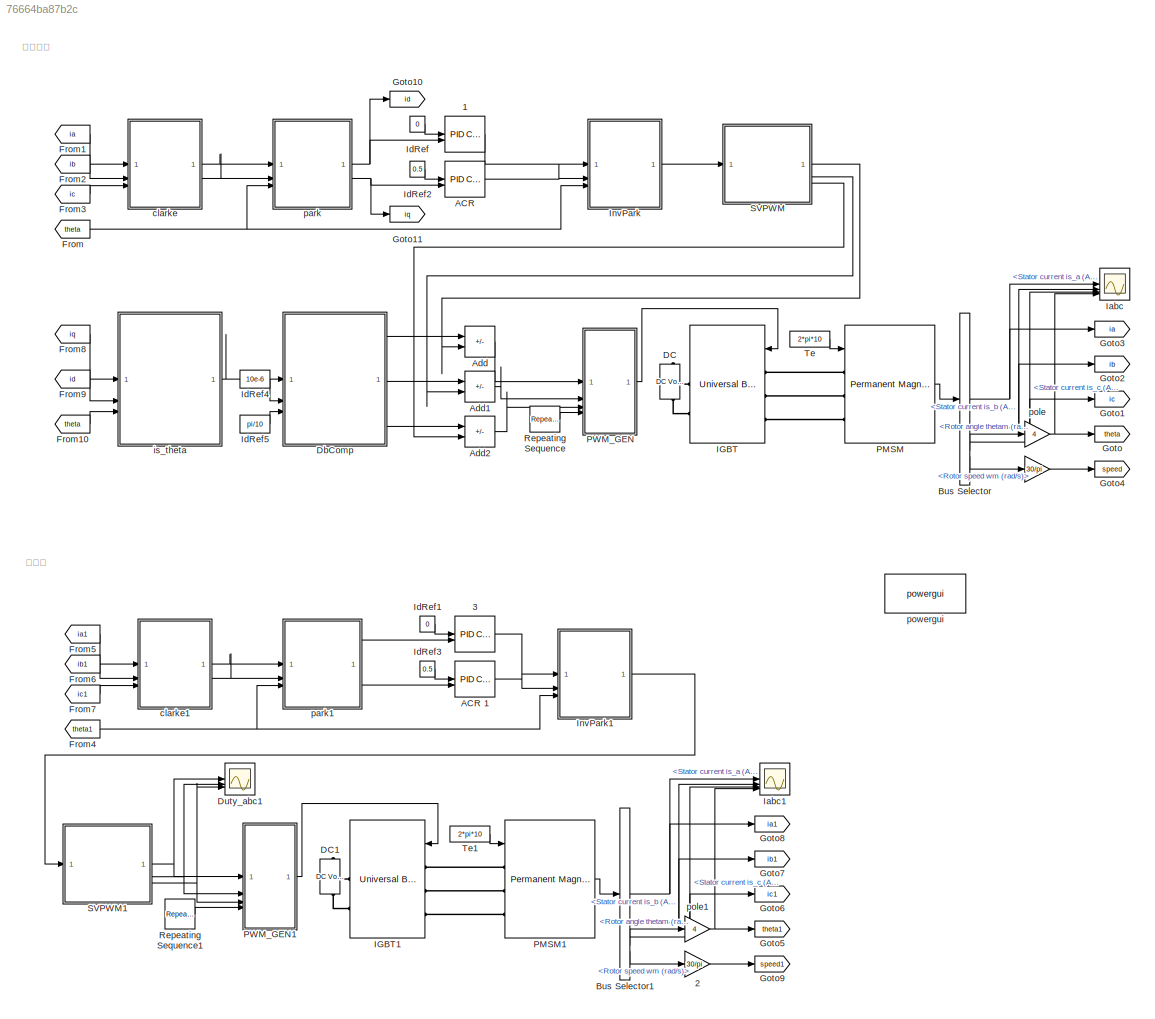
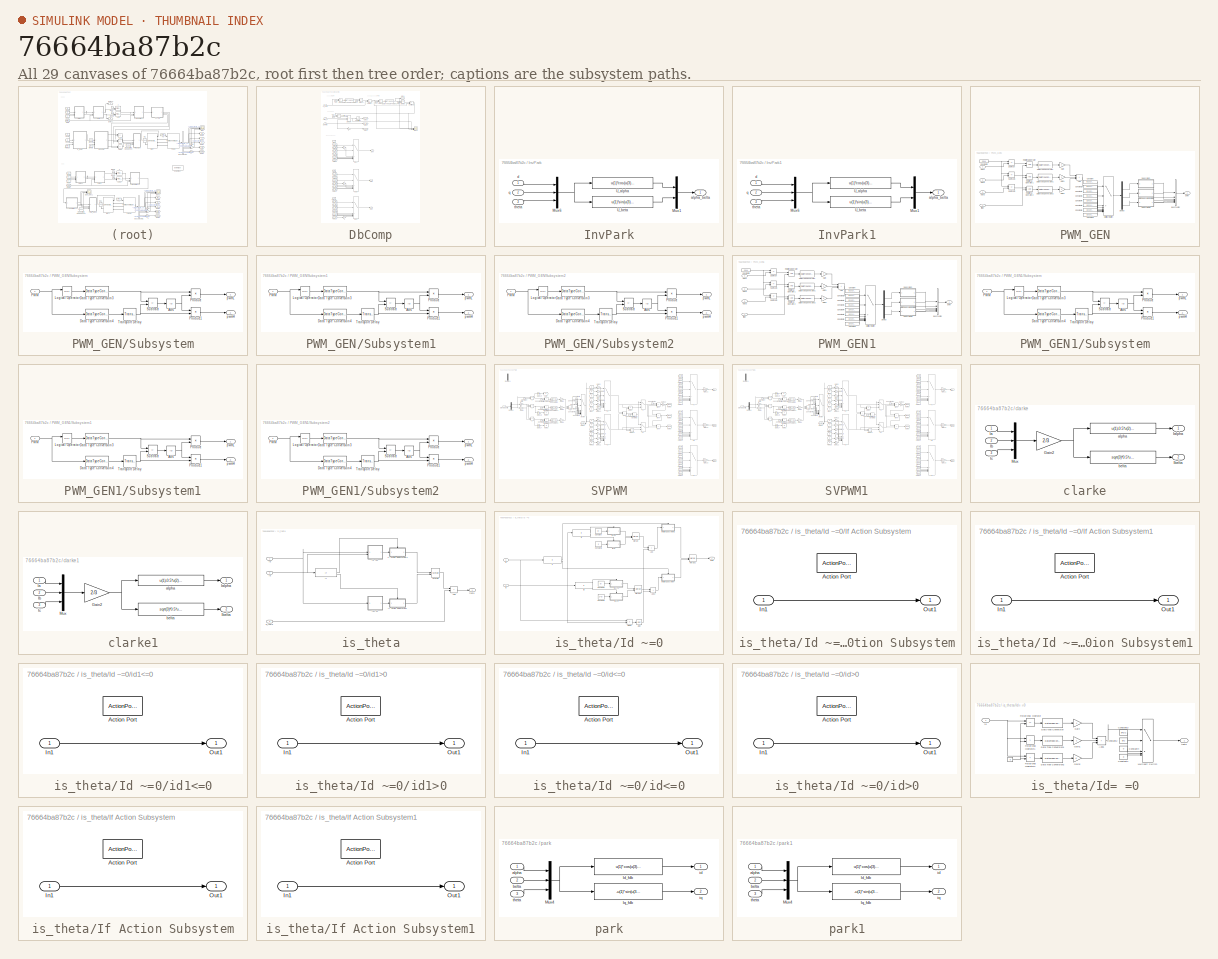
[diagram: thumbnail index - all 29 canvases of the model, root first then tree order]
MODEL slx_76664ba87b2c
KIND model
CONFIG AbsTol = auto
CONFIG EnableMultiTasking = off
CONFIG FixedStep = 1e-7
CONFIG MaxStep = 5e-7
CONFIG MinStep = auto
CONFIG RelTol = 1e-3
CONFIG SampleTimeConstraint = Unconstrained
CONFIG SolverName = ode23
CONFIG StartTime = 0.0
CONFIG StopTime = 0.1
BLOCK [Gain]  
  Gain = 30/pi
BLOCK [Reference]  1  REF=slpidlib/PID Controller (2DOF)
  SourceBlock = slpidlib/PID Controller (2DOF)
  SourceType = PID 2dof
BLOCK [Gain]  2
  Gain = 30/pi
BLOCK [Reference]  3  REF=slpidlib/PID Controller (2DOF)
  SourceBlock = slpidlib/PID Controller (2DOF)
  SourceType = PID 2dof
BLOCK [Reference] ACR   REF=slpidlib/PID Controller (2DOF)
  SourceBlock = slpidlib/PID Controller (2DOF)
  SourceType = PID 2dof
BLOCK [Reference] ACR 1  REF=slpidlib/PID Controller (2DOF)
  SourceBlock = slpidlib/PID Controller (2DOF)
  SourceType = PID 2dof
BLOCK [Sum] Add
  IconShape = rectangular
  Inputs = -+
BLOCK [Sum] Add1
  IconShape = rectangular
  Inputs = -+
BLOCK [Sum] Add2
  IconShape = rectangular
  Inputs = -+
BLOCK [BusSelector] Bus Selector
  OutputSignals = Stator current is_a (A),Stator current is_b (A),Stator current is_c (A),Rotor angle thetam (rad),Rotor speed wm (rad/s)
BLOCK [BusSelector] Bus Selector1
  OutputSignals = Stator current is_a (A),Stator current is_b (A),Stator current is_c (A),Rotor angle thetam (rad),Rotor speed wm (rad/s)
BLOCK [Reference] DC  REF=spsDCVoltageSourceLib/DC Voltage Source
  LibrarySourceBlock = sps_lib/Sources/DC Voltage Source
  NameLocation = right
  SourceBlock = spsDCVoltageSourceLib/DC Voltage Source
  SourceType = DC Voltage Source
BLOCK [Reference] DC1  REF=spsDCVoltageSourceLib/DC Voltage Source
  LibrarySourceBlock = sps_lib/Sources/DC Voltage Source
  NameLocation = right
  SourceBlock = spsDCVoltageSourceLib/DC Voltage Source
  SourceType = DC Voltage Source
BLOCK [SubSystem] DbComp
BLOCK [Gain] DbComp/ 
  Gain = -1
BLOCK [Gain] DbComp/ 1
  Gain = -1
BLOCK [Gain] DbComp/ 2
  Gain = -1
BLOCK [Gain] DbComp/ 5
  Gain = -1
BLOCK [DataTypeConversion] DbComp/Data Type Conversion
  OutDataTypeStr = uint32
  RndMeth = Floor
  SaturateOnIntegerOverflow = off
BLOCK [DataTypeConversion] DbComp/Data Type Conversion1
  OutDataTypeStr = uint32
  RndMeth = Floor
  SaturateOnIntegerOverflow = off
BLOCK [Outport] DbComp/DbA
BLOCK [Outport] DbComp/DbB
  Port = 2
BLOCK [Outport] DbComp/DbC
  Port = 3
BLOCK [Inport] DbComp/DbTime
  Port = 2
BLOCK [Product] DbComp/Divide
  Inputs = */
BLOCK [Product] DbComp/Divide1
  Inputs = **
BLOCK [Product] DbComp/Divide2
  Inputs = */
BLOCK [Product] DbComp/Divide3
  Inputs = **
BLOCK [Product] DbComp/Divide4
  Inputs = */*
BLOCK [From] DbComp/From
  GotoTag = sector
BLOCK [From] DbComp/From1
  GotoTag = Db_Mid
BLOCK [From] DbComp/From10
  GotoTag = Db_Min
BLOCK [From] DbComp/From11
  GotoTag = Db_Min
BLOCK [From] DbComp/From12
  GotoTag = Db_Mid
BLOCK [From] DbComp/From13
  GotoTag = Db_Max
BLOCK [From] DbComp/From14
  GotoTag = sector
BLOCK [From] DbComp/From15
  GotoTag = Db_Mid
BLOCK [From] DbComp/From16
  GotoTag = Db_Max
BLOCK [From] DbComp/From17
  GotoTag = Db_Min
BLOCK [From] DbComp/From18
  GotoTag = Db_Min
BLOCK [From] DbComp/From19
  GotoTag = Db_Mid
BLOCK [From] DbComp/From2
  GotoTag = Db_Max
BLOCK [From] DbComp/From20
  GotoTag = Db_Max
BLOCK [From] DbComp/From3
  GotoTag = Db_Min
BLOCK [From] DbComp/From4
  GotoTag = Db_Min
BLOCK [From] DbComp/From5
  GotoTag = Db_Mid
BLOCK [From] DbComp/From6
  GotoTag = Db_Max
BLOCK [From] DbComp/From7
  GotoTag = sector
BLOCK [From] DbComp/From8
  GotoTag = Db_Mid
BLOCK [From] DbComp/From9
  GotoTag = Db_Max
BLOCK [Goto] DbComp/Goto1
  GotoTag = Db_Mid
BLOCK [Goto] DbComp/Goto2
  GotoTag = Db_Max
BLOCK [Goto] DbComp/Goto3
  GotoTag = Db_Min
BLOCK [Goto] DbComp/Goto4
  GotoTag = sector
BLOCK [Scope] DbComp/Iabc2
  Floating = off
  NumInputPorts = 4
  ScopeSpecificationString = Simulink.scopes.TimeScopeBlockCfg('CurrentConfiguration', extmgr.ConfigurationSet(extmgr.Configuration('Core','General UI',true),extmgr.Configuration('Core','Source UI',true),extmgr.Configuration('Sources','WiredSimulink',true,'DataLoggingVariableName','ScopeData2'),extmgr.Configuration('Visuals','Time Domain',true,'SerializedDisplays',{struct('MinYLimReal','-0.625','MaxYLimReal','5.625','YLabelRe...<+3738ch>
BLOCK [Inport] DbComp/Is_theta
BLOCK [Inport] DbComp/Line_θ
  Port = 3
BLOCK [Saturate] DbComp/Saturation
  LowerLimit = -10e-6
  UpperLimit = 10e-6
BLOCK [Sum] DbComp/Subtract
  IconShape = rectangular
  Inputs = -+
BLOCK [Sum] DbComp/Subtract1
  IconShape = rectangular
  Inputs = -+
BLOCK [Sum] DbComp/Subtract2
  IconShape = rectangular
  Inputs = +-
BLOCK [Constant] DbComp/Te1
  Value = pi/3
BLOCK [Constant] DbComp/Te2
  Value = 2*pi
BLOCK [Constant] DbComp/Te3
  Value = 2*pi
BLOCK [Constant] DbComp/Te4
  Value = pi/3
BLOCK [Constant] DbComp/Te5
  Value = pi/6
BLOCK [MultiPortSwitch] DbComp/dbA
  DataPortOrder = Zero-based contiguous
  InputSameDT = off
  Inputs = 6
  SaturateOnIntegerOverflow = off
  zeroidx = on
BLOCK [MultiPortSwitch] DbComp/dbB
  DataPortOrder = Zero-based contiguous
  InputSameDT = off
  Inputs = 6
  SaturateOnIntegerOverflow = off
  zeroidx = on
BLOCK [MultiPortSwitch] DbComp/dbC
  DataPortOrder = Zero-based contiguous
  InputSameDT = off
  Inputs = 6
  SaturateOnIntegerOverflow = off
  zeroidx = on
BLOCK [Scope] Duty_abc1
  Floating = off
  NumInputPorts = 3
  ScopeSpecificationString = Simulink.scopes.TimeScopeBlockCfg('CurrentConfiguration', extmgr.ConfigurationSet(extmgr.Configuration('Core','General UI',true),extmgr.Configuration('Core','Source UI',true),extmgr.Configuration('Sources','WiredSimulink',true,'DataLoggingVariableName','ScopeData1','DataLoggingLimitDataPoints',true,'DataLoggingSaveFormat','Array','DataLoggingDecimation','1','DataLoggingDecimateData',true),extmgr.C...<+165ch>
BLOCK [From] From
  GotoTag = theta
BLOCK [From] From1
  GotoTag = ia
BLOCK [From] From10
  GotoTag = theta
BLOCK [From] From2
  GotoTag = ib
BLOCK [From] From3
  GotoTag = ic
BLOCK [From] From4
  GotoTag = theta1
BLOCK [From] From5
  GotoTag = ia1
BLOCK [From] From6
  GotoTag = ib1
BLOCK [From] From7
  GotoTag = ic1
BLOCK [From] From8
  GotoTag = iq
BLOCK [From] From9
  GotoTag = id
BLOCK [Goto] Goto
  GotoTag = theta
BLOCK [Goto] Goto1
  GotoTag = ic
BLOCK [Goto] Goto10
  GotoTag = id
BLOCK [Goto] Goto11
  GotoTag = iq
BLOCK [Goto] Goto2
  GotoTag = ib
BLOCK [Goto] Goto3
  GotoTag = ia
BLOCK [Goto] Goto4
  GotoTag = speed
BLOCK [Goto] Goto5
  GotoTag = theta1
BLOCK [Goto] Goto6
  GotoTag = ic1
BLOCK [Goto] Goto7
  GotoTag = ib1
BLOCK [Goto] Goto8
  GotoTag = ia1
BLOCK [Goto] Goto9
  GotoTag = speed1
BLOCK [Reference] IGBT  REF=spsUniversalBridgeLib/Universal Bridge
  LibrarySourceBlock = sps_lib/Power Electronics/Universal Bridge
  SourceBlock = spsUniversalBridgeLib/Universal Bridge
  SourceType = Universal Bridge
BLOCK [Reference] IGBT1  REF=spsUniversalBridgeLib/Universal Bridge
  LibrarySourceBlock = sps_lib/Power Electronics/Universal Bridge
  SourceBlock = spsUniversalBridgeLib/Universal Bridge
  SourceType = Universal Bridge
BLOCK [Scope] Iabc
  Floating = off
  NumInputPorts = 4
  ScopeSpecificationString = Simulink.scopes.TimeScopeBlockCfg('CurrentConfiguration', extmgr.ConfigurationSet(extmgr.Configuration('Core','General UI',true),extmgr.Configuration('Core','Source UI',true),extmgr.Configuration('Sources','WiredSimulink',true,'DataLoggingVariableName','ScopeData2'),extmgr.Configuration('Visuals','Time Domain',true,'SerializedDisplays',{struct('MinYLimReal','-65.70343','MaxYLimReal','65.82971','YL...<+3502ch>
BLOCK [Scope] Iabc1
  Floating = off
  NumInputPorts = 4
  ScopeSpecificationString = Simulink.scopes.TimeScopeBlockCfg('CurrentConfiguration', extmgr.ConfigurationSet(extmgr.Configuration('Core','General UI',true),extmgr.Configuration('Core','Source UI',true),extmgr.Configuration('Sources','WiredSimulink',true,'DataLoggingVariableName','ScopeData2'),extmgr.Configuration('Visuals','Time Domain',true,'SerializedDisplays',{struct('MinYLimReal','-63.44568','MaxYLimReal','63.5325','YLa...<+3513ch>
BLOCK [Constant] IdRef
  Value = 0
BLOCK [Constant] IdRef1
  Value = 0
BLOCK [Constant] IdRef2
  Value = 0.5
BLOCK [Constant] IdRef3
  Value = 0.5
BLOCK [Constant] IdRef4
  Value = 10e-6
BLOCK [Constant] IdRef5
  Value = pi/10
BLOCK [SubSystem] InvPark
BLOCK [Mux] InvPark/Mux1
  DisplayOption = bar
  Inputs = 2
BLOCK [Mux] InvPark/Mux6
  DisplayOption = bar
  Inputs = 3
BLOCK [Fcn] InvPark/U_alpha
  Expr = u(1)*cos(u(3))-u(2)*sin(u(3))
BLOCK [Fcn] InvPark/U_beta
  Expr = u(1)*sin(u(3))+u(2)*cos(u(3))
BLOCK [Outport] InvPark/alpha_belta
BLOCK [Inport] InvPark/d
BLOCK [Inport] InvPark/q
  Port = 2
BLOCK [Inport] InvPark/theta
  Port = 3
BLOCK [SubSystem] InvPark1
BLOCK [Mux] InvPark1/Mux1
  DisplayOption = bar
  Inputs = 2
BLOCK [Mux] InvPark1/Mux6
  DisplayOption = bar
  Inputs = 3
BLOCK [Fcn] InvPark1/U_alpha
  Expr = u(1)*cos(u(3))-u(2)*sin(u(3))
BLOCK [Fcn] InvPark1/U_beta
  Expr = u(1)*sin(u(3))+u(2)*cos(u(3))
BLOCK [Outport] InvPark1/alpha_belta
BLOCK [Inport] InvPark1/d
BLOCK [Inport] InvPark1/q
  Port = 2
BLOCK [Inport] InvPark1/theta
  Port = 3
BLOCK [Reference] PMSM  REF=spsPermanentMagnetSynchronousMachineLib/Permanent Magnet
Synchronous Machine
  LibrarySourceBlock = sps_lib/Electrical Machines/Permanent Magnet\nSynchronous Machine
  SourceBlock = spsPermanentMagnetSynchronousMachineLib/Permanent Magnet\nSynchronous Machine
  SourceType = Permanent Magnet Synchronous Machine
BLOCK [Reference] PMSM1  REF=spsPermanentMagnetSynchronousMachineLib/Permanent Magnet
Synchronous Machine
  LibrarySourceBlock = sps_lib/Electrical Machines/Permanent Magnet\nSynchronous Machine
  SourceBlock = spsPermanentMagnetSynchronousMachineLib/Permanent Magnet\nSynchronous Machine
  SourceType = Permanent Magnet Synchronous Machine
BLOCK [SubSystem] PWM_GEN
BLOCK [Sum] PWM_GEN/Add
  IconShape = rectangular
  Inputs = +++
BLOCK [BusCreator] PWM_GEN/Bus Creator
  DisplayOption = bar
  InheritFromInputs = on
  Inputs = 6
BLOCK [Constant] PWM_GEN/Constant
  Value = [ 0 1 0 1 0 1 ]
BLOCK [Constant] PWM_GEN/Constant1
  Value = [ 0 1 0 1 1 0 ]
BLOCK [Constant] PWM_GEN/Constant2
  Value = [ 0 1 1 0 0 1 ]
BLOCK [Constant] PWM_GEN/Constant3
  Value = [ 0 1 1 0 1 0 ]
BLOCK [Constant] PWM_GEN/Constant4
  Value = [ 1 0 0 1 0 1 ]
BLOCK [Constant] PWM_GEN/Constant5
  Value = [ 1 0 0 1 1 0 ]
BLOCK [Constant] PWM_GEN/Constant6
  Value = [ 1 0 1 0 0 1 ]
BLOCK [Constant] PWM_GEN/Constant7
  Value = [ 1 0 1 0 1 0 ]
BLOCK [Constant] PWM_GEN/Constant8
  Value = 0.5e-4
BLOCK [DataTypeConversion] PWM_GEN/Data Type Conversion
  RndMeth = Floor
  SaturateOnIntegerOverflow = off
BLOCK [DataTypeConversion] PWM_GEN/Data Type Conversion1
  RndMeth = Floor
  SaturateOnIntegerOverflow = off
BLOCK [DataTypeConversion] PWM_GEN/Data Type Conversion2
  RndMeth = Floor
  SaturateOnIntegerOverflow = off
BLOCK [Demux] PWM_GEN/Demux
  Outputs = 6
BLOCK [Gain] PWM_GEN/Gain
  Gain = 4
BLOCK [Gain] PWM_GEN/Gain1
  Gain = 2
BLOCK [Gain] PWM_GEN/Gain2
BLOCK [MultiPortSwitch] PWM_GEN/Multiport Switch
  DataPortOrder = Zero-based contiguous
  InputSameDT = off
  Inputs = 8
  SaturateOnIntegerOverflow = off
  zeroidx = on
BLOCK [RelationalOperator] PWM_GEN/Relational Operator
  InputSameDT = off
  OutDataTypeStr = boolean
BLOCK [RelationalOperator] PWM_GEN/Relational Operator1
  InputSameDT = off
  OutDataTypeStr = boolean
BLOCK [RelationalOperator] PWM_GEN/Relational Operator2
  InputSameDT = off
  OutDataTypeStr = boolean
BLOCK [SubSystem] PWM_GEN/Subsystem
BLOCK [Abs] PWM_GEN/Subsystem/Abs
  SaturateOnIntegerOverflow = off
BLOCK [DataTypeConversion] PWM_GEN/Subsystem/Data Type Conversion3
  OutDataTypeStr = double
  RndMeth = Floor
  SaturateOnIntegerOverflow = off
BLOCK [DataTypeConversion] PWM_GEN/Subsystem/Data Type Conversion4
  OutDataTypeStr = double
  RndMeth = Floor
  SaturateOnIntegerOverflow = off
BLOCK [Logic] PWM_GEN/Subsystem/Logical Operator
  AllPortsSameDT = off
  Operator = NOT
  OutDataTypeStr = boolean
BLOCK [Inport] PWM_GEN/Subsystem/PWM
BLOCK [Product] PWM_GEN/Subsystem/Product
BLOCK [Product] PWM_GEN/Subsystem/Product1
BLOCK [Sum] PWM_GEN/Subsystem/Subtract
  IconShape = rectangular
  Inputs = +-
BLOCK [TransportDelay] PWM_GEN/Subsystem/Transport Delay
  DelayTime = 10e-6
BLOCK [Outport] PWM_GEN/Subsystem/pwmH
  Port = 2
BLOCK [Outport] PWM_GEN/Subsystem/pwmL
BLOCK [SubSystem] PWM_GEN/Subsystem1
BLOCK [Abs] PWM_GEN/Subsystem1/Abs
  SaturateOnIntegerOverflow = off
BLOCK [DataTypeConversion] PWM_GEN/Subsystem1/Data Type Conversion3
  OutDataTypeStr = double
  RndMeth = Floor
  SaturateOnIntegerOverflow = off
BLOCK [DataTypeConversion] PWM_GEN/Subsystem1/Data Type Conversion4
  OutDataTypeStr = double
  RndMeth = Floor
  SaturateOnIntegerOverflow = off
BLOCK [Logic] PWM_GEN/Subsystem1/Logical Operator
  AllPortsSameDT = off
  Operator = NOT
  OutDataTypeStr = boolean
BLOCK [Inport] PWM_GEN/Subsystem1/PWM
BLOCK [Product] PWM_GEN/Subsystem1/Product
BLOCK [Product] PWM_GEN/Subsystem1/Product1
BLOCK [Sum] PWM_GEN/Subsystem1/Subtract
  IconShape = rectangular
  Inputs = +-
BLOCK [TransportDelay] PWM_GEN/Subsystem1/Transport Delay
  DelayTime = 10e-6
BLOCK [Outport] PWM_GEN/Subsystem1/pwmH
  Port = 2
BLOCK [Outport] PWM_GEN/Subsystem1/pwmL
BLOCK [SubSystem] PWM_GEN/Subsystem2
BLOCK [Abs] PWM_GEN/Subsystem2/Abs
  SaturateOnIntegerOverflow = off
BLOCK [DataTypeConversion] PWM_GEN/Subsystem2/Data Type Conversion3
  OutDataTypeStr = double
  RndMeth = Floor
  SaturateOnIntegerOverflow = off
BLOCK [DataTypeConversion] PWM_GEN/Subsystem2/Data Type Conversion4
  OutDataTypeStr = double
  RndMeth = Floor
  SaturateOnIntegerOverflow = off
BLOCK [Logic] PWM_GEN/Subsystem2/Logical Operator
  AllPortsSameDT = off
  Operator = NOT
  OutDataTypeStr = boolean
BLOCK [Inport] PWM_GEN/Subsystem2/PWM
BLOCK [Product] PWM_GEN/Subsystem2/Product
BLOCK [Product] PWM_GEN/Subsystem2/Product1
BLOCK [Sum] PWM_GEN/Subsystem2/Subtract
  IconShape = rectangular
  Inputs = +-
BLOCK [TransportDelay] PWM_GEN/Subsystem2/Transport Delay
  DelayTime = 10e-6
BLOCK [Outport] PWM_GEN/Subsystem2/pwmH
  Port = 2
BLOCK [Outport] PWM_GEN/Subsystem2/pwmL
BLOCK [Sum] PWM_GEN/Subtract
  IconShape = rectangular
  Inputs = +-
BLOCK [Sum] PWM_GEN/Subtract1
  IconShape = rectangular
  Inputs = +-
BLOCK [Sum] PWM_GEN/Subtract2
  IconShape = rectangular
  Inputs = +-
BLOCK [Inport] PWM_GEN/duty1
BLOCK [Inport] PWM_GEN/duty2
  Port = 2
BLOCK [Inport] PWM_GEN/duty3
  Port = 3
BLOCK [Outport] PWM_GEN/pwm
BLOCK [Inport] PWM_GEN/timer
  Port = 4
BLOCK [SubSystem] PWM_GEN1
BLOCK [Sum] PWM_GEN1/Add
  IconShape = rectangular
  Inputs = +++
BLOCK [BusCreator] PWM_GEN1/Bus Creator
  DisplayOption = bar
  InheritFromInputs = on
  Inputs = 6
BLOCK [Constant] PWM_GEN1/Constant
  Value = [ 0 1 0 1 0 1 ]
BLOCK [Constant] PWM_GEN1/Constant1
  Value = [ 0 1 0 1 1 0 ]
BLOCK [Constant] PWM_GEN1/Constant2
  Value = [ 0 1 1 0 0 1 ]
BLOCK [Constant] PWM_GEN1/Constant3
  Value = [ 0 1 1 0 1 0 ]
BLOCK [Constant] PWM_GEN1/Constant4
  Value = [ 1 0 0 1 0 1 ]
BLOCK [Constant] PWM_GEN1/Constant5
  Value = [ 1 0 0 1 1 0 ]
BLOCK [Constant] PWM_GEN1/Constant6
  Value = [ 1 0 1 0 0 1 ]
BLOCK [Constant] PWM_GEN1/Constant7
  Value = [ 1 0 1 0 1 0 ]
BLOCK [Constant] PWM_GEN1/Constant8
  Value = 0.5e-4
BLOCK [DataTypeConversion] PWM_GEN1/Data Type Conversion
  RndMeth = Floor
  SaturateOnIntegerOverflow = off
BLOCK [DataTypeConversion] PWM_GEN1/Data Type Conversion1
  RndMeth = Floor
  SaturateOnIntegerOverflow = off
BLOCK [DataTypeConversion] PWM_GEN1/Data Type Conversion2
  RndMeth = Floor
  SaturateOnIntegerOverflow = off
BLOCK [Demux] PWM_GEN1/Demux
  Outputs = 6
BLOCK [Gain] PWM_GEN1/Gain
  Gain = 4
BLOCK [Gain] PWM_GEN1/Gain1
  Gain = 2
BLOCK [Gain] PWM_GEN1/Gain2
BLOCK [MultiPortSwitch] PWM_GEN1/Multiport Switch
  DataPortOrder = Zero-based contiguous
  InputSameDT = off
  Inputs = 8
  SaturateOnIntegerOverflow = off
  zeroidx = on
BLOCK [RelationalOperator] PWM_GEN1/Relational Operator
  InputSameDT = off
  OutDataTypeStr = boolean
BLOCK [RelationalOperator] PWM_GEN1/Relational Operator1
  InputSameDT = off
  OutDataTypeStr = boolean
BLOCK [RelationalOperator] PWM_GEN1/Relational Operator2
  InputSameDT = off
  OutDataTypeStr = boolean
BLOCK [SubSystem] PWM_GEN1/Subsystem
BLOCK [Abs] PWM_GEN1/Subsystem/Abs
  SaturateOnIntegerOverflow = off
BLOCK [DataTypeConversion] PWM_GEN1/Subsystem/Data Type Conversion3
  OutDataTypeStr = double
  RndMeth = Floor
  SaturateOnIntegerOverflow = off
BLOCK [DataTypeConversion] PWM_GEN1/Subsystem/Data Type Conversion4
  OutDataTypeStr = double
  RndMeth = Floor
  SaturateOnIntegerOverflow = off
BLOCK [Logic] PWM_GEN1/Subsystem/Logical Operator
  AllPortsSameDT = off
  Operator = NOT
  OutDataTypeStr = boolean
BLOCK [Inport] PWM_GEN1/Subsystem/PWM
BLOCK [Product] PWM_GEN1/Subsystem/Product
BLOCK [Product] PWM_GEN1/Subsystem/Product1
BLOCK [Sum] PWM_GEN1/Subsystem/Subtract
  IconShape = rectangular
  Inputs = +-
BLOCK [TransportDelay] PWM_GEN1/Subsystem/Transport Delay
  DelayTime = 10e-6
BLOCK [Outport] PWM_GEN1/Subsystem/pwmH
  Port = 2
BLOCK [Outport] PWM_GEN1/Subsystem/pwmL
BLOCK [SubSystem] PWM_GEN1/Subsystem1
BLOCK [Abs] PWM_GEN1/Subsystem1/Abs
  SaturateOnIntegerOverflow = off
BLOCK [DataTypeConversion] PWM_GEN1/Subsystem1/Data Type Conversion3
  OutDataTypeStr = double
  RndMeth = Floor
  SaturateOnIntegerOverflow = off
BLOCK [DataTypeConversion] PWM_GEN1/Subsystem1/Data Type Conversion4
  OutDataTypeStr = double
  RndMeth = Floor
  SaturateOnIntegerOverflow = off
BLOCK [Logic] PWM_GEN1/Subsystem1/Logical Operator
  AllPortsSameDT = off
  Operator = NOT
  OutDataTypeStr = boolean
BLOCK [Inport] PWM_GEN1/Subsystem1/PWM
BLOCK [Product] PWM_GEN1/Subsystem1/Product
BLOCK [Product] PWM_GEN1/Subsystem1/Product1
BLOCK [Sum] PWM_GEN1/Subsystem1/Subtract
  IconShape = rectangular
  Inputs = +-
BLOCK [TransportDelay] PWM_GEN1/Subsystem1/Transport Delay
  DelayTime = 10e-6
BLOCK [Outport] PWM_GEN1/Subsystem1/pwmH
  Port = 2
BLOCK [Outport] PWM_GEN1/Subsystem1/pwmL
BLOCK [SubSystem] PWM_GEN1/Subsystem2
BLOCK [Abs] PWM_GEN1/Subsystem2/Abs
  SaturateOnIntegerOverflow = off
BLOCK [DataTypeConversion] PWM_GEN1/Subsystem2/Data Type Conversion3
  OutDataTypeStr = double
  RndMeth = Floor
  SaturateOnIntegerOverflow = off
BLOCK [DataTypeConversion] PWM_GEN1/Subsystem2/Data Type Conversion4
  OutDataTypeStr = double
  RndMeth = Floor
  SaturateOnIntegerOverflow = off
BLOCK [Logic] PWM_GEN1/Subsystem2/Logical Operator
  AllPortsSameDT = off
  Operator = NOT
  OutDataTypeStr = boolean
BLOCK [Inport] PWM_GEN1/Subsystem2/PWM
BLOCK [Product] PWM_GEN1/Subsystem2/Product
BLOCK [Product] PWM_GEN1/Subsystem2/Product1
BLOCK [Sum] PWM_GEN1/Subsystem2/Subtract
  IconShape = rectangular
  Inputs = +-
BLOCK [TransportDelay] PWM_GEN1/Subsystem2/Transport Delay
  DelayTime = 10e-6
BLOCK [Outport] PWM_GEN1/Subsystem2/pwmH
  Port = 2
BLOCK [Outport] PWM_GEN1/Subsystem2/pwmL
BLOCK [Sum] PWM_GEN1/Subtract
  IconShape = rectangular
  Inputs = +-
BLOCK [Sum] PWM_GEN1/Subtract1
  IconShape = rectangular
  Inputs = +-
BLOCK [Sum] PWM_GEN1/Subtract2
  IconShape = rectangular
  Inputs = +-
BLOCK [Inport] PWM_GEN1/duty1
BLOCK [Inport] PWM_GEN1/duty2
  Port = 2
BLOCK [Inport] PWM_GEN1/duty3
  Port = 3
BLOCK [Outport] PWM_GEN1/pwm
BLOCK [Inport] PWM_GEN1/timer
  Port = 4
BLOCK [Reference] Repeating Sequence  REF=simulink/Sources/Repeating
Sequence
  SourceBlock = simulink/Sources/Repeating\nSequence
  SourceType = Repeating table
BLOCK [Reference] Repeating Sequence1  REF=simulink/Sources/Repeating
Sequence
  SourceBlock = simulink/Sources/Repeating\nSequence
  SourceType = Repeating table
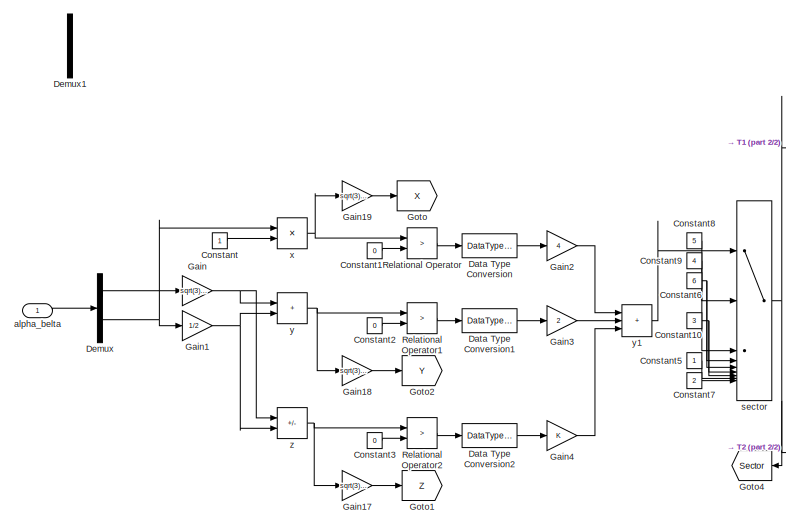
[diagram: SVPWM - part 1/2, top left region]
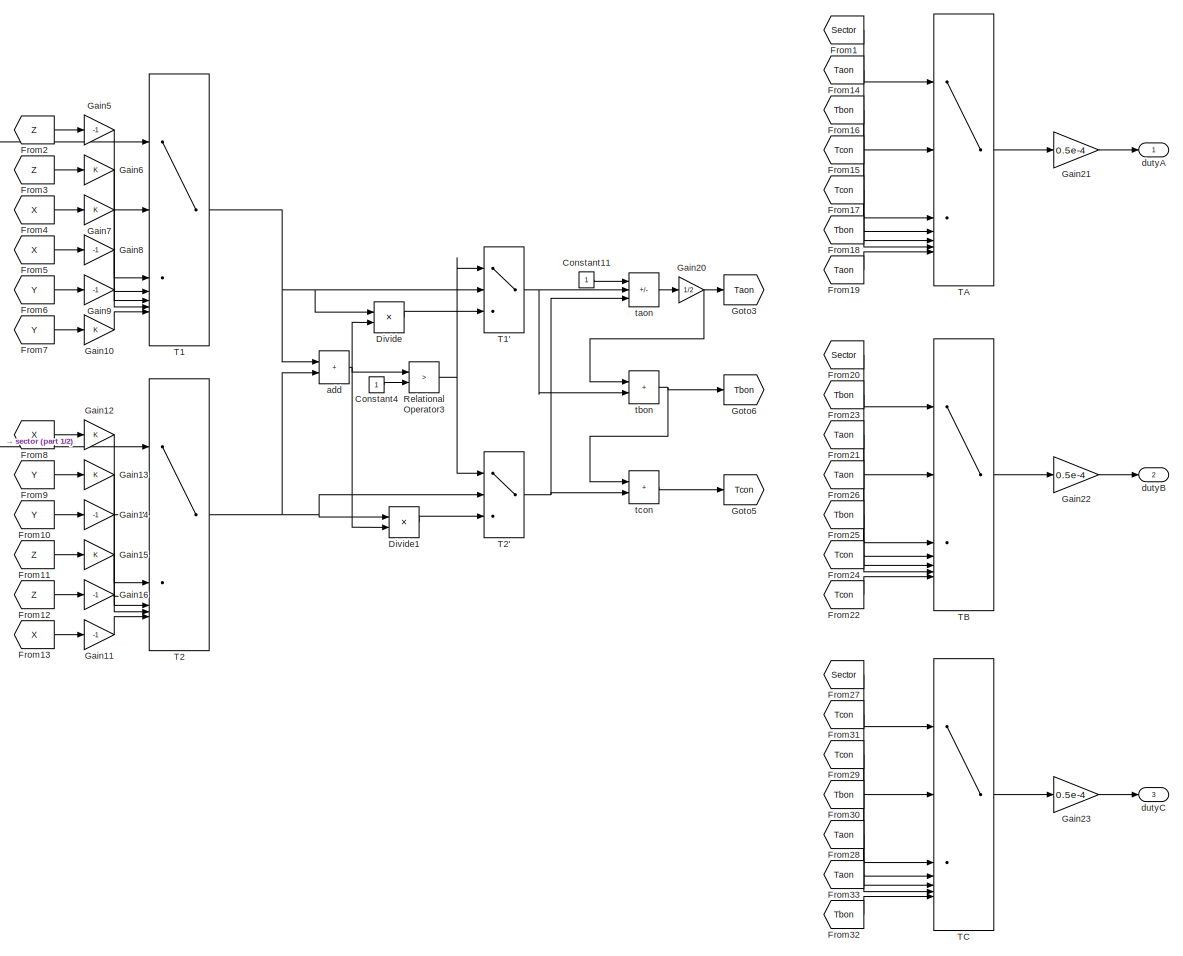
[diagram: SVPWM - part 2/2, right side, full height]
BLOCK [SubSystem] SVPWM
BLOCK [Constant] SVPWM/Constant
BLOCK [Constant] SVPWM/Constant1
  Value = 0
BLOCK [Constant] SVPWM/Constant10
  Value = 3
BLOCK [Constant] SVPWM/Constant11
BLOCK [Constant] SVPWM/Constant2
  Value = 0
BLOCK [Constant] SVPWM/Constant3
  Value = 0
BLOCK [Constant] SVPWM/Constant4
BLOCK [Constant] SVPWM/Constant5
BLOCK [Constant] SVPWM/Constant6
  Value = 6
BLOCK [Constant] SVPWM/Constant7
  Value = 2
BLOCK [Constant] SVPWM/Constant8
  Value = 5
BLOCK [Constant] SVPWM/Constant9
  Value = 4
BLOCK [DataTypeConversion] SVPWM/Data Type Conversion
  RndMeth = Floor
  SaturateOnIntegerOverflow = off
BLOCK [DataTypeConversion] SVPWM/Data Type Conversion1
  RndMeth = Floor
  SaturateOnIntegerOverflow = off
BLOCK [DataTypeConversion] SVPWM/Data Type Conversion2
  RndMeth = Floor
  SaturateOnIntegerOverflow = off
BLOCK [Demux] SVPWM/Demux
  Outputs = 2
BLOCK [Demux] SVPWM/Demux1
  Outputs = 2
BLOCK [Product] SVPWM/Divide
  Inputs = */
BLOCK [Product] SVPWM/Divide1
  Inputs = */
BLOCK [From] SVPWM/From1
  GotoTag = Sector
BLOCK [From] SVPWM/From10
  GotoTag = Y
BLOCK [From] SVPWM/From11
  GotoTag = Z
BLOCK [From] SVPWM/From12
  GotoTag = Z
BLOCK [From] SVPWM/From13
  GotoTag = X
BLOCK [From] SVPWM/From14
  GotoTag = Taon
BLOCK [From] SVPWM/From15
  GotoTag = Tcon
BLOCK [From] SVPWM/From16
  GotoTag = Tbon
BLOCK [From] SVPWM/From17
  GotoTag = Tcon
BLOCK [From] SVPWM/From18
  GotoTag = Tbon
BLOCK [From] SVPWM/From19
  GotoTag = Taon
BLOCK [From] SVPWM/From2
  GotoTag = Z
BLOCK [From] SVPWM/From20
  GotoTag = Sector
BLOCK [From] SVPWM/From21
  GotoTag = Taon
BLOCK [From] SVPWM/From22
  GotoTag = Tcon
BLOCK [From] SVPWM/From23
  GotoTag = Tbon
BLOCK [From] SVPWM/From24
  GotoTag = Tcon
BLOCK [From] SVPWM/From25
  GotoTag = Tbon
BLOCK [From] SVPWM/From26
  GotoTag = Taon
BLOCK [From] SVPWM/From27
  GotoTag = Sector
BLOCK [From] SVPWM/From28
  GotoTag = Taon
BLOCK [From] SVPWM/From29
  GotoTag = Tcon
BLOCK [From] SVPWM/From3
  GotoTag = Z
BLOCK [From] SVPWM/From30
  GotoTag = Tbon
BLOCK [From] SVPWM/From31
  GotoTag = Tcon
BLOCK [From] SVPWM/From32
  GotoTag = Tbon
BLOCK [From] SVPWM/From33
  GotoTag = Taon
BLOCK [From] SVPWM/From4
  GotoTag = X
BLOCK [From] SVPWM/From5
  GotoTag = X
BLOCK [From] SVPWM/From6
  GotoTag = Y
BLOCK [From] SVPWM/From7
  GotoTag = Y
BLOCK [From] SVPWM/From8
  GotoTag = X
BLOCK [From] SVPWM/From9
  GotoTag = Y
BLOCK [Gain] SVPWM/Gain
  Gain = sqrt(3)/2
BLOCK [Gain] SVPWM/Gain1
  Gain = 1/2
BLOCK [Gain] SVPWM/Gain10
BLOCK [Gain] SVPWM/Gain11
  Gain = -1
BLOCK [Gain] SVPWM/Gain12
BLOCK [Gain] SVPWM/Gain13
BLOCK [Gain] SVPWM/Gain14
  Gain = -1
BLOCK [Gain] SVPWM/Gain15
BLOCK [Gain] SVPWM/Gain16
  Gain = -1
BLOCK [Gain] SVPWM/Gain17
  Gain = sqrt(3)/560
BLOCK [Gain] SVPWM/Gain18
  Gain = sqrt(3)/560
BLOCK [Gain] SVPWM/Gain19
  Gain = sqrt(3)/560
BLOCK [Gain] SVPWM/Gain2
  Gain = 4
BLOCK [Gain] SVPWM/Gain20
  Gain = 1/2
BLOCK [Gain] SVPWM/Gain21
  Gain = 0.5e-4
BLOCK [Gain] SVPWM/Gain22
  Gain = 0.5e-4
BLOCK [Gain] SVPWM/Gain23
  Gain = 0.5e-4
BLOCK [Gain] SVPWM/Gain3
  Gain = 2
BLOCK [Gain] SVPWM/Gain4
BLOCK [Gain] SVPWM/Gain5
  Gain = -1
BLOCK [Gain] SVPWM/Gain6
BLOCK [Gain] SVPWM/Gain7
BLOCK [Gain] SVPWM/Gain8
  Gain = -1
BLOCK [Gain] SVPWM/Gain9
  Gain = -1
BLOCK [Goto] SVPWM/Goto
  GotoTag = X
BLOCK [Goto] SVPWM/Goto1
  GotoTag = Z
BLOCK [Goto] SVPWM/Goto2
  GotoTag = Y
BLOCK [Goto] SVPWM/Goto3
  GotoTag = Taon
BLOCK [Goto] SVPWM/Goto4
  GotoTag = Sector
  NameLocation = top
BLOCK [Goto] SVPWM/Goto5
  GotoTag = Tcon
BLOCK [Goto] SVPWM/Goto6
  GotoTag = Tbon
BLOCK [RelationalOperator] SVPWM/Relational Operator
  InputSameDT = off
  Operator = >
  OutDataTypeStr = boolean
BLOCK [RelationalOperator] SVPWM/Relational Operator1
  InputSameDT = off
  Operator = >
  OutDataTypeStr = boolean
BLOCK [RelationalOperator] SVPWM/Relational Operator2
  InputSameDT = off
  Operator = >
  OutDataTypeStr = boolean
BLOCK [RelationalOperator] SVPWM/Relational Operator3
  InputSameDT = off
  Operator = >
  OutDataTypeStr = boolean
BLOCK [MultiPortSwitch] SVPWM/T1
  InputSameDT = off
  Inputs = 6
  SaturateOnIntegerOverflow = off
BLOCK [MultiPortSwitch] SVPWM/T1'
  DataPortOrder = Zero-based contiguous
  InputSameDT = off
  Inputs = 2
  SaturateOnIntegerOverflow = off
  zeroidx = on
BLOCK [MultiPortSwitch] SVPWM/T2
  InputSameDT = off
  Inputs = 6
  SaturateOnIntegerOverflow = off
BLOCK [MultiPortSwitch] SVPWM/T2'
  DataPortOrder = Zero-based contiguous
  InputSameDT = off
  Inputs = 2
  SaturateOnIntegerOverflow = off
  zeroidx = on
BLOCK [MultiPortSwitch] SVPWM/TA
  InputSameDT = off
  Inputs = 6
  SaturateOnIntegerOverflow = off
BLOCK [MultiPortSwitch] SVPWM/TB
  InputSameDT = off
  Inputs = 6
  SaturateOnIntegerOverflow = off
BLOCK [MultiPortSwitch] SVPWM/TC
  InputSameDT = off
  Inputs = 6
  SaturateOnIntegerOverflow = off
BLOCK [Sum] SVPWM/add 
  IconShape = rectangular
BLOCK [Inport] SVPWM/alpha_belta
BLOCK [Outport] SVPWM/dutyA
BLOCK [Outport] SVPWM/dutyB
  Port = 2
BLOCK [Outport] SVPWM/dutyC
  Port = 3
BLOCK [MultiPortSwitch] SVPWM/sector 
  DataPortOrder = Zero-based contiguous
  InputSameDT = off
  Inputs = 8
  SaturateOnIntegerOverflow = off
  zeroidx = on
BLOCK [Sum] SVPWM/taon 
  IconShape = rectangular
  Inputs = +--
BLOCK [Sum] SVPWM/tbon
  IconShape = rectangular
BLOCK [Sum] SVPWM/tcon
  IconShape = rectangular
BLOCK [Product] SVPWM/x
BLOCK [Sum] SVPWM/y
  IconShape = rectangular
BLOCK [Sum] SVPWM/y1
  IconShape = rectangular
  Inputs = +++
BLOCK [Sum] SVPWM/z
  IconShape = rectangular
  Inputs = -+
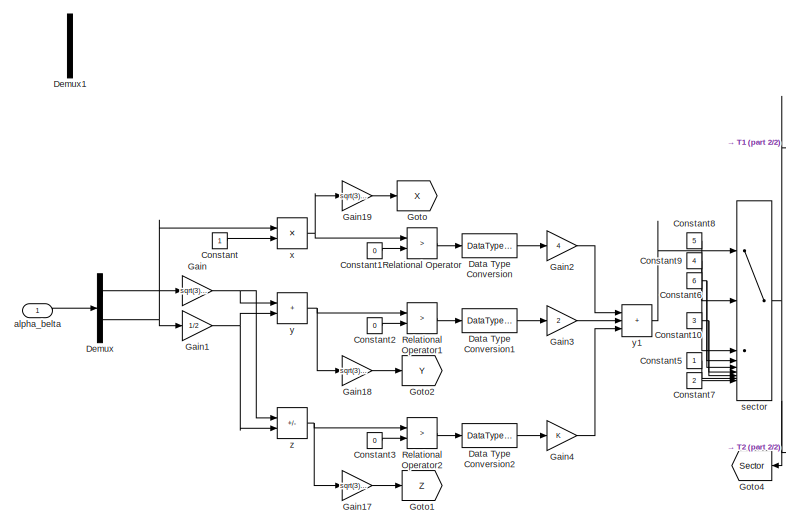
[diagram: SVPWM1 - part 1/2, top left region]
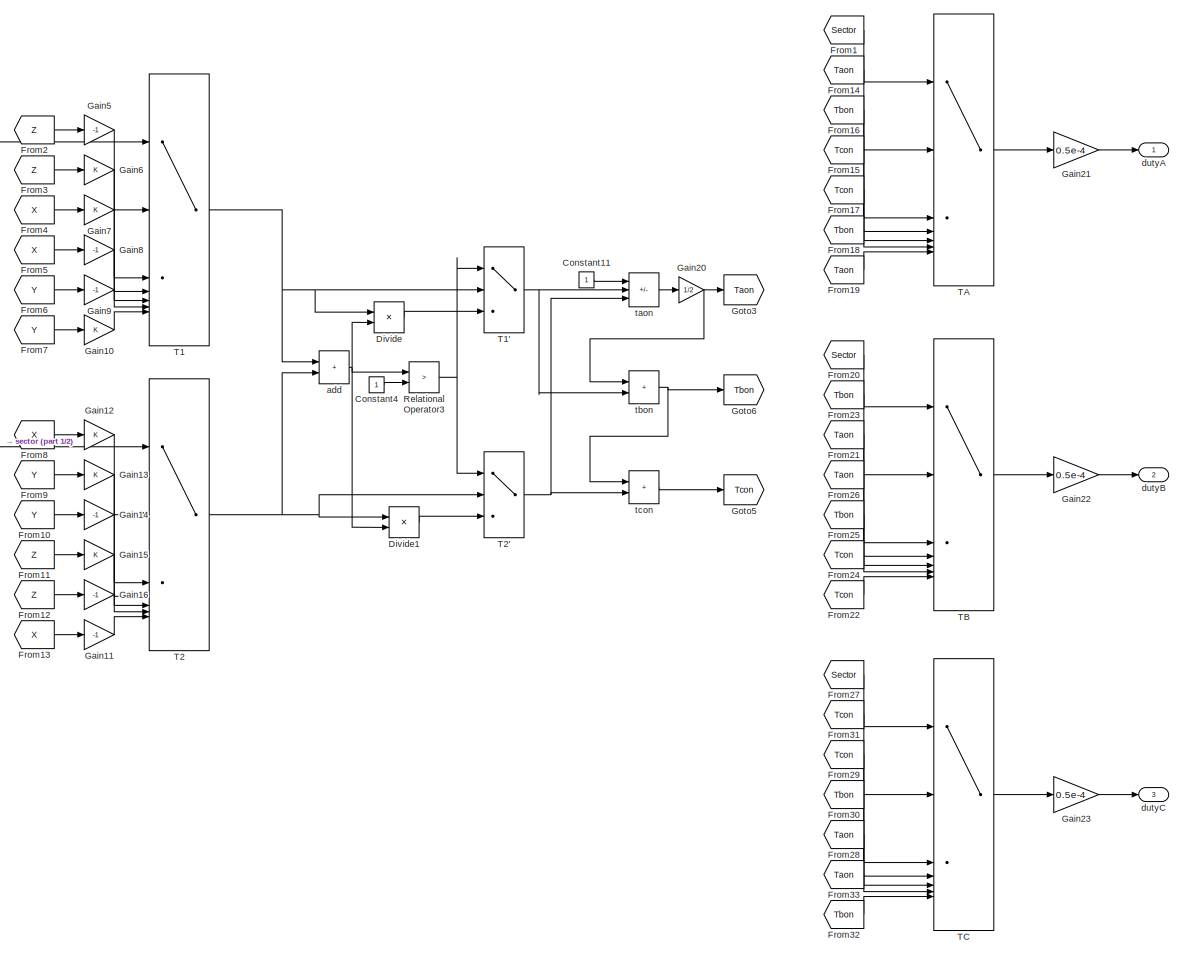
[diagram: SVPWM1 - part 2/2, right side, full height]
BLOCK [SubSystem] SVPWM1
BLOCK [Constant] SVPWM1/Constant
BLOCK [Constant] SVPWM1/Constant1
  Value = 0
BLOCK [Constant] SVPWM1/Constant10
  Value = 3
BLOCK [Constant] SVPWM1/Constant11
BLOCK [Constant] SVPWM1/Constant2
  Value = 0
BLOCK [Constant] SVPWM1/Constant3
  Value = 0
BLOCK [Constant] SVPWM1/Constant4
BLOCK [Constant] SVPWM1/Constant5
BLOCK [Constant] SVPWM1/Constant6
  Value = 6
BLOCK [Constant] SVPWM1/Constant7
  Value = 2
BLOCK [Constant] SVPWM1/Constant8
  Value = 5
BLOCK [Constant] SVPWM1/Constant9
  Value = 4
BLOCK [DataTypeConversion] SVPWM1/Data Type Conversion
  RndMeth = Floor
  SaturateOnIntegerOverflow = off
BLOCK [DataTypeConversion] SVPWM1/Data Type Conversion1
  RndMeth = Floor
  SaturateOnIntegerOverflow = off
BLOCK [DataTypeConversion] SVPWM1/Data Type Conversion2
  RndMeth = Floor
  SaturateOnIntegerOverflow = off
BLOCK [Demux] SVPWM1/Demux
  Outputs = 2
BLOCK [Demux] SVPWM1/Demux1
  Outputs = 2
BLOCK [Product] SVPWM1/Divide
  Inputs = */
BLOCK [Product] SVPWM1/Divide1
  Inputs = */
BLOCK [From] SVPWM1/From1
  GotoTag = Sector
BLOCK [From] SVPWM1/From10
  GotoTag = Y
BLOCK [From] SVPWM1/From11
  GotoTag = Z
BLOCK [From] SVPWM1/From12
  GotoTag = Z
BLOCK [From] SVPWM1/From13
  GotoTag = X
BLOCK [From] SVPWM1/From14
  GotoTag = Taon
BLOCK [From] SVPWM1/From15
  GotoTag = Tcon
BLOCK [From] SVPWM1/From16
  GotoTag = Tbon
BLOCK [From] SVPWM1/From17
  GotoTag = Tcon
BLOCK [From] SVPWM1/From18
  GotoTag = Tbon
BLOCK [From] SVPWM1/From19
  GotoTag = Taon
BLOCK [From] SVPWM1/From2
  GotoTag = Z
BLOCK [From] SVPWM1/From20
  GotoTag = Sector
BLOCK [From] SVPWM1/From21
  GotoTag = Taon
BLOCK [From] SVPWM1/From22
  GotoTag = Tcon
BLOCK [From] SVPWM1/From23
  GotoTag = Tbon
BLOCK [From] SVPWM1/From24
  GotoTag = Tcon
BLOCK [From] SVPWM1/From25
  GotoTag = Tbon
BLOCK [From] SVPWM1/From26
  GotoTag = Taon
BLOCK [From] SVPWM1/From27
  GotoTag = Sector
BLOCK [From] SVPWM1/From28
  GotoTag = Taon
BLOCK [From] SVPWM1/From29
  GotoTag = Tcon
BLOCK [From] SVPWM1/From3
  GotoTag = Z
BLOCK [From] SVPWM1/From30
  GotoTag = Tbon
BLOCK [From] SVPWM1/From31
  GotoTag = Tcon
BLOCK [From] SVPWM1/From32
  GotoTag = Tbon
BLOCK [From] SVPWM1/From33
  GotoTag = Taon
BLOCK [From] SVPWM1/From4
  GotoTag = X
BLOCK [From] SVPWM1/From5
  GotoTag = X
BLOCK [From] SVPWM1/From6
  GotoTag = Y
BLOCK [From] SVPWM1/From7
  GotoTag = Y
BLOCK [From] SVPWM1/From8
  GotoTag = X
BLOCK [From] SVPWM1/From9
  GotoTag = Y
BLOCK [Gain] SVPWM1/Gain
  Gain = sqrt(3)/2
BLOCK [Gain] SVPWM1/Gain1
  Gain = 1/2
BLOCK [Gain] SVPWM1/Gain10
BLOCK [Gain] SVPWM1/Gain11
  Gain = -1
BLOCK [Gain] SVPWM1/Gain12
BLOCK [Gain] SVPWM1/Gain13
BLOCK [Gain] SVPWM1/Gain14
  Gain = -1
BLOCK [Gain] SVPWM1/Gain15
BLOCK [Gain] SVPWM1/Gain16
  Gain = -1
BLOCK [Gain] SVPWM1/Gain17
  Gain = sqrt(3)/560
BLOCK [Gain] SVPWM1/Gain18
  Gain = sqrt(3)/560
BLOCK [Gain] SVPWM1/Gain19
  Gain = sqrt(3)/560
BLOCK [Gain] SVPWM1/Gain2
  Gain = 4
BLOCK [Gain] SVPWM1/Gain20
  Gain = 1/2
BLOCK [Gain] SVPWM1/Gain21
  Gain = 0.5e-4
BLOCK [Gain] SVPWM1/Gain22
  Gain = 0.5e-4
BLOCK [Gain] SVPWM1/Gain23
  Gain = 0.5e-4
BLOCK [Gain] SVPWM1/Gain3
  Gain = 2
BLOCK [Gain] SVPWM1/Gain4
BLOCK [Gain] SVPWM1/Gain5
  Gain = -1
BLOCK [Gain] SVPWM1/Gain6
BLOCK [Gain] SVPWM1/Gain7
BLOCK [Gain] SVPWM1/Gain8
  Gain = -1
BLOCK [Gain] SVPWM1/Gain9
  Gain = -1
BLOCK [Goto] SVPWM1/Goto
  GotoTag = X
BLOCK [Goto] SVPWM1/Goto1
  GotoTag = Z
BLOCK [Goto] SVPWM1/Goto2
  GotoTag = Y
BLOCK [Goto] SVPWM1/Goto3
  GotoTag = Taon
BLOCK [Goto] SVPWM1/Goto4
  GotoTag = Sector
  NameLocation = top
BLOCK [Goto] SVPWM1/Goto5
  GotoTag = Tcon
BLOCK [Goto] SVPWM1/Goto6
  GotoTag = Tbon
BLOCK [RelationalOperator] SVPWM1/Relational Operator
  InputSameDT = off
  Operator = >
  OutDataTypeStr = boolean
BLOCK [RelationalOperator] SVPWM1/Relational Operator1
  InputSameDT = off
  Operator = >
  OutDataTypeStr = boolean
BLOCK [RelationalOperator] SVPWM1/Relational Operator2
  InputSameDT = off
  Operator = >
  OutDataTypeStr = boolean
BLOCK [RelationalOperator] SVPWM1/Relational Operator3
  InputSameDT = off
  Operator = >
  OutDataTypeStr = boolean
BLOCK [MultiPortSwitch] SVPWM1/T1
  InputSameDT = off
  Inputs = 6
  SaturateOnIntegerOverflow = off
BLOCK [MultiPortSwitch] SVPWM1/T1'
  DataPortOrder = Zero-based contiguous
  InputSameDT = off
  Inputs = 2
  SaturateOnIntegerOverflow = off
  zeroidx = on
BLOCK [MultiPortSwitch] SVPWM1/T2
  InputSameDT = off
  Inputs = 6
  SaturateOnIntegerOverflow = off
BLOCK [MultiPortSwitch] SVPWM1/T2'
  DataPortOrder = Zero-based contiguous
  InputSameDT = off
  Inputs = 2
  SaturateOnIntegerOverflow = off
  zeroidx = on
BLOCK [MultiPortSwitch] SVPWM1/TA
  InputSameDT = off
  Inputs = 6
  SaturateOnIntegerOverflow = off
BLOCK [MultiPortSwitch] SVPWM1/TB
  InputSameDT = off
  Inputs = 6
  SaturateOnIntegerOverflow = off
BLOCK [MultiPortSwitch] SVPWM1/TC
  InputSameDT = off
  Inputs = 6
  SaturateOnIntegerOverflow = off
BLOCK [Sum] SVPWM1/add 
  IconShape = rectangular
BLOCK [Inport] SVPWM1/alpha_belta
BLOCK [Outport] SVPWM1/dutyA
BLOCK [Outport] SVPWM1/dutyB
  Port = 2
BLOCK [Outport] SVPWM1/dutyC
  Port = 3
BLOCK [MultiPortSwitch] SVPWM1/sector 
  DataPortOrder = Zero-based contiguous
  InputSameDT = off
  Inputs = 8
  SaturateOnIntegerOverflow = off
  zeroidx = on
BLOCK [Sum] SVPWM1/taon 
  IconShape = rectangular
  Inputs = +--
BLOCK [Sum] SVPWM1/tbon
  IconShape = rectangular
BLOCK [Sum] SVPWM1/tcon
  IconShape = rectangular
BLOCK [Product] SVPWM1/x
BLOCK [Sum] SVPWM1/y
  IconShape = rectangular
BLOCK [Sum] SVPWM1/y1
  IconShape = rectangular
  Inputs = +++
BLOCK [Sum] SVPWM1/z
  IconShape = rectangular
  Inputs = -+
BLOCK [Constant] Te
  Value = 2*pi*10
BLOCK [Constant] Te1
  Value = 2*pi*10
BLOCK [SubSystem] clarke
BLOCK [Gain] clarke/Gain2
  Gain = 2/3
BLOCK [Inport] clarke/Ia
BLOCK [Outport] clarke/Ialpha
BLOCK [Inport] clarke/Ib
  Port = 2
BLOCK [Outport] clarke/Ibelta
  Port = 2
BLOCK [Inport] clarke/Ic
  Port = 3
BLOCK [Mux] clarke/Mux
  DisplayOption = bar
  Inputs = 3
BLOCK [Fcn] clarke/alpha 
  Expr = u(1)-0.5*u(2)-0.5*u(3)
BLOCK [Fcn] clarke/belta
  Expr = sqrt(3)*0.5*u(2)-sqrt(3)*0.5*u(3)
BLOCK [SubSystem] clarke1
BLOCK [Gain] clarke1/Gain2
  Gain = 2/3
BLOCK [Inport] clarke1/Ia
BLOCK [Outport] clarke1/Ialpha
BLOCK [Inport] clarke1/Ib
  Port = 2
BLOCK [Outport] clarke1/Ibelta
  Port = 2
BLOCK [Inport] clarke1/Ic
  Port = 3
BLOCK [Mux] clarke1/Mux
  DisplayOption = bar
  Inputs = 3
BLOCK [Fcn] clarke1/alpha 
  Expr = u(1)-0.5*u(2)-0.5*u(3)
BLOCK [Fcn] clarke1/belta
  Expr = sqrt(3)*0.5*u(2)-sqrt(3)*0.5*u(3)
BLOCK [SubSystem] is_theta
BLOCK [Sum] is_theta/Add
  IconShape = rectangular
BLOCK [Inport] is_theta/Id
  Port = 2
BLOCK [SubSystem] is_theta/Id ~=0
BLOCK [Sum] is_theta/Id ~=0/Add
  IconShape = rectangular
BLOCK [Sum] is_theta/Id ~=0/Add1
  IconShape = rectangular
BLOCK [Constant] is_theta/Id ~=0/Constant
  Value = pi
BLOCK [Constant] is_theta/Id ~=0/Constant1
  Value = 0
BLOCK [Constant] is_theta/Id ~=0/Constant2
  Value = pi
BLOCK [Constant] is_theta/Id ~=0/Constant3
  Value = 2*pi
BLOCK [Product] is_theta/Id ~=0/Divide
  Inputs = */
BLOCK [If] is_theta/Id ~=0/If
BLOCK [SubSystem] is_theta/Id ~=0/If Action Subsystem
  TreatAsAtomicUnit = on
BLOCK [ActionPort] is_theta/Id ~=0/If Action Subsystem/Action Port
  ActionPortLabel = else
BLOCK [Inport] is_theta/Id ~=0/If Action Subsystem/In1
BLOCK [Outport] is_theta/Id ~=0/If Action Subsystem/Out1
BLOCK [SubSystem] is_theta/Id ~=0/If Action Subsystem1
  TreatAsAtomicUnit = on
BLOCK [ActionPort] is_theta/Id ~=0/If Action Subsystem1/Action Port
  ActionPortLabel = if(u1 > 0)
BLOCK [Inport] is_theta/Id ~=0/If Action Subsystem1/In1
BLOCK [Outport] is_theta/Id ~=0/If Action Subsystem1/Out1
BLOCK [If] is_theta/Id ~=0/If1
  IfExpression = u1 <= 0
BLOCK [If] is_theta/Id ~=0/If2
  IfExpression = u1 <= 0
BLOCK [Merge] is_theta/Id ~=0/Merge
BLOCK [Merge] is_theta/Id ~=0/Merge1
BLOCK [Merge] is_theta/Id ~=0/Merge2
BLOCK [Trigonometry] is_theta/Id ~=0/atan
  Operator = atan
BLOCK [Inport] is_theta/Id ~=0/id
  Port = 2
BLOCK [SubSystem] is_theta/Id ~=0/id1<=0
  TreatAsAtomicUnit = on
BLOCK [ActionPort] is_theta/Id ~=0/id1<=0/Action Port
  ActionPortLabel = if(u1 <= 0)
BLOCK [Inport] is_theta/Id ~=0/id1<=0/In1
BLOCK [Outport] is_theta/Id ~=0/id1<=0/Out1
BLOCK [SubSystem] is_theta/Id ~=0/id1>0
  TreatAsAtomicUnit = on
BLOCK [ActionPort] is_theta/Id ~=0/id1>0/Action Port
  ActionPortLabel = else
BLOCK [Inport] is_theta/Id ~=0/id1>0/In1
BLOCK [Outport] is_theta/Id ~=0/id1>0/Out1
BLOCK [SubSystem] is_theta/Id ~=0/id<=0
  TreatAsAtomicUnit = on
BLOCK [ActionPort] is_theta/Id ~=0/id<=0/Action Port
  ActionPortLabel = if(u1 <= 0)
BLOCK [Inport] is_theta/Id ~=0/id<=0/In1
BLOCK [Outport] is_theta/Id ~=0/id<=0/Out1
BLOCK [SubSystem] is_theta/Id ~=0/id>0
  TreatAsAtomicUnit = on
BLOCK [ActionPort] is_theta/Id ~=0/id>0/Action Port
  ActionPortLabel = else
BLOCK [Inport] is_theta/Id ~=0/id>0/In1
BLOCK [Outport] is_theta/Id ~=0/id>0/Out1
BLOCK [Inport] is_theta/Id ~=0/iq
BLOCK [Outport] is_theta/Id ~=0/theta
BLOCK [SubSystem] is_theta/Id= =0
BLOCK [Constant] is_theta/Id= =0/ 
  Value = 0
BLOCK [Sum] is_theta/Id= =0/Add1
  IconShape = rectangular
  Inputs = +++
BLOCK [Constant] is_theta/Id= =0/Constant1
  Value = 0
BLOCK [Constant] is_theta/Id= =0/Constant2
  Value = pi/2
BLOCK [Constant] is_theta/Id= =0/Constant3
  Value = pi*3/2
BLOCK [Constant] is_theta/Id= =0/Constant4
  Value = 0
BLOCK [DataTypeConversion] is_theta/Id= =0/Data Type Conversion
  RndMeth = Floor
  SaturateOnIntegerOverflow = off
BLOCK [DataTypeConversion] is_theta/Id= =0/Data Type Conversion1
  RndMeth = Floor
  SaturateOnIntegerOverflow = off
BLOCK [DataTypeConversion] is_theta/Id= =0/Data Type Conversion2
  RndMeth = Floor
  SaturateOnIntegerOverflow = off
BLOCK [Gain] is_theta/Id= =0/Gain
  Gain = 4
BLOCK [Gain] is_theta/Id= =0/Gain1
  Gain = 2
BLOCK [Gain] is_theta/Id= =0/Gain2
BLOCK [MultiPortSwitch] is_theta/Id= =0/Multiport Switch
  InputSameDT = off
  Inputs = 4
  SaturateOnIntegerOverflow = off
BLOCK [RelationalOperator] is_theta/Id= =0/Relational Operator
  InputSameDT = off
  Operator = ==
  OutDataTypeStr = boolean
BLOCK [RelationalOperator] is_theta/Id= =0/Relational Operator1
  InputSameDT = off
  Operator = >
  OutDataTypeStr = boolean
BLOCK [RelationalOperator] is_theta/Id= =0/Relational Operator2
  InputSameDT = off
  Operator = <
  OutDataTypeStr = boolean
BLOCK [Inport] is_theta/Id= =0/id
BLOCK [Outport] is_theta/Id= =0/theta
BLOCK [If] is_theta/If
  IfExpression = u1 ~= 0
BLOCK [SubSystem] is_theta/If Action Subsystem
  TreatAsAtomicUnit = on
BLOCK [ActionPort] is_theta/If Action Subsystem/Action Port
  ActionPortLabel = else
BLOCK [Inport] is_theta/If Action Subsystem/In1
BLOCK [Outport] is_theta/If Action Subsystem/Out1
BLOCK [SubSystem] is_theta/If Action Subsystem1
  TreatAsAtomicUnit = on
BLOCK [ActionPort] is_theta/If Action Subsystem1/Action Port
  ActionPortLabel = if(u1 ~= 0)
BLOCK [Inport] is_theta/If Action Subsystem1/In1
BLOCK [Outport] is_theta/If Action Subsystem1/Out1
BLOCK [Inport] is_theta/Iq
BLOCK [Merge] is_theta/Merge
BLOCK [Inport] is_theta/d_theta
  Port = 3
BLOCK [Outport] is_theta/thata
BLOCK [SubSystem] park
BLOCK [Fcn] park/Id_fdb
  Expr = u(1)*cos(u(3))+u(2)*sin(u(3))
BLOCK [Fcn] park/Iq_fdb
  Expr = -u(1)*sin(u(3))+u(2)*cos(u(3))
BLOCK [Mux] park/Mux4
  DisplayOption = bar
  Inputs = 3
BLOCK [Inport] park/alpha
BLOCK [Inport] park/belta
  Port = 2
BLOCK [Outport] park/id
BLOCK [Outport] park/iq
  Port = 2
BLOCK [Inport] park/theta
  Port = 3
BLOCK [SubSystem] park1
BLOCK [Fcn] park1/Id_fdb
  Expr = u(1)*cos(u(3))+u(2)*sin(u(3))
BLOCK [Fcn] park1/Iq_fdb
  Expr = -u(1)*sin(u(3))+u(2)*cos(u(3))
BLOCK [Mux] park1/Mux4
  DisplayOption = bar
  Inputs = 3
BLOCK [Inport] park1/alpha
BLOCK [Inport] park1/belta
  Port = 2
BLOCK [Outport] park1/id
BLOCK [Outport] park1/iq
  Port = 2
BLOCK [Inport] park1/theta
  Port = 3
BLOCK [Gain] pole
  Gain = 4
BLOCK [Gain] pole1
  Gain = 4
BLOCK [Reference] powergui  REF=sps_lib/powergui
  LibrarySourceBlock = sps_lib/powergui
  Priority = 1
  SourceBlock = sps_lib/powergui
  SourceType = PSB option menu block
ANNOTATION (root): 未补偿
ANNOTATION (root): 死区补偿
ANNOTATION DbComp: 三相死区补偿时间分配
ANNOTATION DbComp: 角度限制在0-2π
ANNOTATION DbComp: 计算扇区,将角度限制在0-π/3
ANNOTATION DbComp: 计算死区补偿值
LINE  1:1 -> InvPark:1
LINE  2:1 -> Goto9:1
LINE  3:1 -> InvPark1:1
LINE  :1 -> Goto4:1
LINE ACR 1:1 -> InvPark1:2
LINE ACR :1 -> InvPark:2
LINE Add1:1 -> PWM_GEN:2
LINE Add2:1 -> PWM_GEN:3
LINE Add:1 -> PWM_GEN:1
NET Bus Selector1:1 -> Goto8:1, Iabc1:1
NET Bus Selector1:2 -> Goto7:1, Iabc1:2
NET Bus Selector1:3 -> Goto6:1, Iabc1:3
LINE Bus Selector1:4 -> pole1:1
LINE Bus Selector1:5 ->  2:1
NET Bus Selector:1 -> Goto3:1, Iabc:1
NET Bus Selector:2 -> Goto2:1, Iabc:2
NET Bus Selector:3 -> Goto1:1, Iabc:3
LINE Bus Selector:4 -> pole:1
LINE Bus Selector:5 ->  :1
LINE DbComp/ 1:1 -> DbComp/dbA:3
LINE DbComp/ 2:1 -> DbComp/dbB:5
LINE DbComp/ 5:1 -> DbComp/dbC:7
LINE DbComp/ :1 -> DbComp/Goto3:1
NET DbComp/Data Type Conversion1:1 -> DbComp/Divide3:1, DbComp/Goto4:1, DbComp/Iabc2:1
LINE DbComp/Data Type Conversion:1 -> DbComp/Divide1:1
NET DbComp/DbTime:1 -> DbComp/ :1, DbComp/Divide4:3, DbComp/Goto2:1
LINE DbComp/Divide1:1 -> DbComp/Subtract:1
LINE DbComp/Divide2:1 -> DbComp/Data Type Conversion1:1
LINE DbComp/Divide3:1 -> DbComp/Subtract1:1
NET DbComp/Divide4:1 -> DbComp/Iabc2:4, DbComp/Saturation:1
LINE DbComp/Divide:1 -> DbComp/Data Type Conversion:1
LINE DbComp/From10:1 -> DbComp/dbB:6
LINE DbComp/From11:1 -> DbComp/dbB:7
LINE DbComp/From12:1 -> DbComp/ 2:1
LINE DbComp/From13:1 -> DbComp/dbB:4
LINE DbComp/From14:1 -> DbComp/dbC:1
LINE DbComp/From15:1 -> DbComp/dbC:4
LINE DbComp/From16:1 -> DbComp/dbC:5
LINE DbComp/From17:1 -> DbComp/dbC:2
LINE DbComp/From18:1 -> DbComp/dbC:3
LINE DbComp/From19:1 -> DbComp/ 5:1
LINE DbComp/From1:1 -> DbComp/ 1:1
LINE DbComp/From20:1 -> DbComp/dbC:6
LINE DbComp/From2:1 -> DbComp/dbA:2
LINE DbComp/From3:1 -> DbComp/dbA:4
LINE DbComp/From4:1 -> DbComp/dbA:5
LINE DbComp/From5:1 -> DbComp/dbA:6
LINE DbComp/From6:1 -> DbComp/dbA:7
LINE DbComp/From7:1 -> DbComp/dbB:1
LINE DbComp/From8:1 -> DbComp/dbB:2
LINE DbComp/From9:1 -> DbComp/dbB:3
LINE DbComp/From:1 -> DbComp/dbA:1
NET DbComp/Is_theta:1 -> DbComp/Divide:1, DbComp/Subtract:2
LINE DbComp/Line_θ:1 -> DbComp/Divide4:2
LINE DbComp/Saturation:1 -> DbComp/Goto1:1
NET DbComp/Subtract1:1 -> DbComp/Iabc2:3, DbComp/Subtract2:1
LINE DbComp/Subtract2:1 -> DbComp/Divide4:1
NET DbComp/Subtract:1 -> DbComp/Divide2:1, DbComp/Iabc2:2, DbComp/Subtract1:2
LINE DbComp/Te1:1 -> DbComp/Divide2:2
LINE DbComp/Te2:1 -> DbComp/Divide:2
LINE DbComp/Te3:1 -> DbComp/Divide1:2
LINE DbComp/Te4:1 -> DbComp/Divide3:2
LINE DbComp/Te5:1 -> DbComp/Subtract2:2
LINE DbComp/dbA:1 -> DbComp/DbA:1
LINE DbComp/dbB:1 -> DbComp/DbB:1
LINE DbComp/dbC:1 -> DbComp/DbC:1
LINE DbComp:1 -> Add:1
LINE DbComp:2 -> Add1:1
LINE DbComp:3 -> Add2:1
LINE From10:1 -> is_theta:3
LINE From1:1 -> clarke:1
LINE From2:1 -> clarke:2
LINE From3:1 -> clarke:3
NET From4:1 -> InvPark1:3, park1:3
LINE From5:1 -> clarke1:1
LINE From6:1 -> clarke1:2
LINE From7:1 -> clarke1:3
LINE From8:1 -> is_theta:1
LINE From9:1 -> is_theta:2
NET From:1 -> InvPark:3, park:3
LINE IdRef1:1 ->  3:1
LINE IdRef2:1 -> ACR :1
LINE IdRef3:1 -> ACR 1:1
LINE IdRef4:1 -> DbComp:2
LINE IdRef5:1 -> DbComp:3
LINE IdRef:1 ->  1:1
LINE InvPark/Mux1:1 -> InvPark/alpha_belta:1
NET InvPark/Mux6:1 -> InvPark/U_alpha:1, InvPark/U_beta:1
LINE InvPark/U_alpha:1 -> InvPark/Mux1:1
LINE InvPark/U_beta:1 -> InvPark/Mux1:2
LINE InvPark/d:1 -> InvPark/Mux6:1
LINE InvPark/q:1 -> InvPark/Mux6:2
LINE InvPark/theta:1 -> InvPark/Mux6:3
LINE InvPark1/Mux1:1 -> InvPark1/alpha_belta:1
NET InvPark1/Mux6:1 -> InvPark1/U_alpha:1, InvPark1/U_beta:1
LINE InvPark1/U_alpha:1 -> InvPark1/Mux1:1
LINE InvPark1/U_beta:1 -> InvPark1/Mux1:2
LINE InvPark1/d:1 -> InvPark1/Mux6:1
LINE InvPark1/q:1 -> InvPark1/Mux6:2
LINE InvPark1/theta:1 -> InvPark1/Mux6:3
LINE InvPark1:1 -> SVPWM1:1
LINE InvPark:1 -> SVPWM:1
LINE PMSM1:1 -> Bus Selector1:1
LINE PMSM:1 -> Bus Selector:1
LINE PWM_GEN/Add:1 -> PWM_GEN/Multiport Switch:1
LINE PWM_GEN/Bus Creator:1 -> PWM_GEN/pwm:1
LINE PWM_GEN/Constant1:1 -> PWM_GEN/Multiport Switch:3
LINE PWM_GEN/Constant2:1 -> PWM_GEN/Multiport Switch:4
LINE PWM_GEN/Constant3:1 -> PWM_GEN/Multiport Switch:5
LINE PWM_GEN/Constant4:1 -> PWM_GEN/Multiport Switch:6
LINE PWM_GEN/Constant5:1 -> PWM_GEN/Multiport Switch:7
LINE PWM_GEN/Constant6:1 -> PWM_GEN/Multiport Switch:8
LINE PWM_GEN/Constant7:1 -> PWM_GEN/Multiport Switch:9
NET PWM_GEN/Constant8:1 -> PWM_GEN/Subtract1:1, PWM_GEN/Subtract2:1, PWM_GEN/Subtract:1
LINE PWM_GEN/Constant:1 -> PWM_GEN/Multiport Switch:2
LINE PWM_GEN/Data Type Conversion1:1 -> PWM_GEN/Gain1:1
LINE PWM_GEN/Data Type Conversion2:1 -> PWM_GEN/Gain2:1
LINE PWM_GEN/Data Type Conversion:1 -> PWM_GEN/Gain:1
LINE PWM_GEN/Demux:2 -> PWM_GEN/Subsystem:1
LINE PWM_GEN/Demux:4 -> PWM_GEN/Subsystem1:1
LINE PWM_GEN/Demux:6 -> PWM_GEN/Subsystem2:1
LINE PWM_GEN/Gain1:1 -> PWM_GEN/Add:2
LINE PWM_GEN/Gain2:1 -> PWM_GEN/Add:3
LINE PWM_GEN/Gain:1 -> PWM_GEN/Add:1
LINE PWM_GEN/Multiport Switch:1 -> PWM_GEN/Demux:1
LINE PWM_GEN/Relational Operator1:1 -> PWM_GEN/Data Type Conversion1:1
LINE PWM_GEN/Relational Operator2:1 -> PWM_GEN/Data Type Conversion2:1
LINE PWM_GEN/Relational Operator:1 -> PWM_GEN/Data Type Conversion:1
NET PWM_GEN/Subsystem/Abs:1 -> PWM_GEN/Subsystem/Product1:1, PWM_GEN/Subsystem/Product:2
NET PWM_GEN/Subsystem/Data Type Conversion3:1 -> PWM_GEN/Subsystem/Product:1, PWM_GEN/Subsystem/Subtract:1
LINE PWM_GEN/Subsystem/Data Type Conversion4:1 -> PWM_GEN/Subsystem/Transport Delay:1
LINE PWM_GEN/Subsystem/Logical Operator:1 -> PWM_GEN/Subsystem/Data Type Conversion3:1
NET PWM_GEN/Subsystem/PWM:1 -> PWM_GEN/Subsystem/Data Type Conversion4:1, PWM_GEN/Subsystem/Logical Operator:1
LINE PWM_GEN/Subsystem/Product1:1 -> PWM_GEN/Subsystem/pwmH:1
LINE PWM_GEN/Subsystem/Product:1 -> PWM_GEN/Subsystem/pwmL:1
LINE PWM_GEN/Subsystem/Subtract:1 -> PWM_GEN/Subsystem/Abs:1
NET PWM_GEN/Subsystem/Transport Delay:1 -> PWM_GEN/Subsystem/Product1:2, PWM_GEN/Subsystem/Subtract:2
NET PWM_GEN/Subsystem1/Abs:1 -> PWM_GEN/Subsystem1/Product1:1, PWM_GEN/Subsystem1/Product:2
NET PWM_GEN/Subsystem1/Data Type Conversion3:1 -> PWM_GEN/Subsystem1/Product:1, PWM_GEN/Subsystem1/Subtract:1
LINE PWM_GEN/Subsystem1/Data Type Conversion4:1 -> PWM_GEN/Subsystem1/Transport Delay:1
LINE PWM_GEN/Subsystem1/Logical Operator:1 -> PWM_GEN/Subsystem1/Data Type Conversion3:1
NET PWM_GEN/Subsystem1/PWM:1 -> PWM_GEN/Subsystem1/Data Type Conversion4:1, PWM_GEN/Subsystem1/Logical Operator:1
LINE PWM_GEN/Subsystem1/Product1:1 -> PWM_GEN/Subsystem1/pwmH:1
LINE PWM_GEN/Subsystem1/Product:1 -> PWM_GEN/Subsystem1/pwmL:1
LINE PWM_GEN/Subsystem1/Subtract:1 -> PWM_GEN/Subsystem1/Abs:1
NET PWM_GEN/Subsystem1/Transport Delay:1 -> PWM_GEN/Subsystem1/Product1:2, PWM_GEN/Subsystem1/Subtract:2
LINE PWM_GEN/Subsystem1:1 -> PWM_GEN/Bus Creator:3
LINE PWM_GEN/Subsystem1:2 -> PWM_GEN/Bus Creator:4
NET PWM_GEN/Subsystem2/Abs:1 -> PWM_GEN/Subsystem2/Product1:1, PWM_GEN/Subsystem2/Product:2
NET PWM_GEN/Subsystem2/Data Type Conversion3:1 -> PWM_GEN/Subsystem2/Product:1, PWM_GEN/Subsystem2/Subtract:1
LINE PWM_GEN/Subsystem2/Data Type Conversion4:1 -> PWM_GEN/Subsystem2/Transport Delay:1
LINE PWM_GEN/Subsystem2/Logical Operator:1 -> PWM_GEN/Subsystem2/Data Type Conversion3:1
NET PWM_GEN/Subsystem2/PWM:1 -> PWM_GEN/Subsystem2/Data Type Conversion4:1, PWM_GEN/Subsystem2/Logical Operator:1
LINE PWM_GEN/Subsystem2/Product1:1 -> PWM_GEN/Subsystem2/pwmH:1
LINE PWM_GEN/Subsystem2/Product:1 -> PWM_GEN/Subsystem2/pwmL:1
LINE PWM_GEN/Subsystem2/Subtract:1 -> PWM_GEN/Subsystem2/Abs:1
NET PWM_GEN/Subsystem2/Transport Delay:1 -> PWM_GEN/Subsystem2/Product1:2, PWM_GEN/Subsystem2/Subtract:2
LINE PWM_GEN/Subsystem2:1 -> PWM_GEN/Bus Creator:5
LINE PWM_GEN/Subsystem2:2 -> PWM_GEN/Bus Creator:6
LINE PWM_GEN/Subsystem:1 -> PWM_GEN/Bus Creator:1
LINE PWM_GEN/Subsystem:2 -> PWM_GEN/Bus Creator:2
LINE PWM_GEN/Subtract1:1 -> PWM_GEN/Relational Operator1:1
LINE PWM_GEN/Subtract2:1 -> PWM_GEN/Relational Operator2:1
LINE PWM_GEN/Subtract:1 -> PWM_GEN/Relational Operator:1
LINE PWM_GEN/duty1:1 -> PWM_GEN/Subtract:2
LINE PWM_GEN/duty2:1 -> PWM_GEN/Subtract1:2
LINE PWM_GEN/duty3:1 -> PWM_GEN/Subtract2:2
NET PWM_GEN/timer:1 -> PWM_GEN/Relational Operator1:2, PWM_GEN/Relational Operator2:2, PWM_GEN/Relational Operator:2
LINE PWM_GEN1/Add:1 -> PWM_GEN1/Multiport Switch:1
LINE PWM_GEN1/Bus Creator:1 -> PWM_GEN1/pwm:1
LINE PWM_GEN1/Constant1:1 -> PWM_GEN1/Multiport Switch:3
LINE PWM_GEN1/Constant2:1 -> PWM_GEN1/Multiport Switch:4
LINE PWM_GEN1/Constant3:1 -> PWM_GEN1/Multiport Switch:5
LINE PWM_GEN1/Constant4:1 -> PWM_GEN1/Multiport Switch:6
LINE PWM_GEN1/Constant5:1 -> PWM_GEN1/Multiport Switch:7
LINE PWM_GEN1/Constant6:1 -> PWM_GEN1/Multiport Switch:8
LINE PWM_GEN1/Constant7:1 -> PWM_GEN1/Multiport Switch:9
NET PWM_GEN1/Constant8:1 -> PWM_GEN1/Subtract1:1, PWM_GEN1/Subtract2:1, PWM_GEN1/Subtract:1
LINE PWM_GEN1/Constant:1 -> PWM_GEN1/Multiport Switch:2
LINE PWM_GEN1/Data Type Conversion1:1 -> PWM_GEN1/Gain1:1
LINE PWM_GEN1/Data Type Conversion2:1 -> PWM_GEN1/Gain2:1
LINE PWM_GEN1/Data Type Conversion:1 -> PWM_GEN1/Gain:1
LINE PWM_GEN1/Demux:2 -> PWM_GEN1/Subsystem:1
LINE PWM_GEN1/Demux:4 -> PWM_GEN1/Subsystem1:1
LINE PWM_GEN1/Demux:6 -> PWM_GEN1/Subsystem2:1
LINE PWM_GEN1/Gain1:1 -> PWM_GEN1/Add:2
LINE PWM_GEN1/Gain2:1 -> PWM_GEN1/Add:3
LINE PWM_GEN1/Gain:1 -> PWM_GEN1/Add:1
LINE PWM_GEN1/Multiport Switch:1 -> PWM_GEN1/Demux:1
LINE PWM_GEN1/Relational Operator1:1 -> PWM_GEN1/Data Type Conversion1:1
LINE PWM_GEN1/Relational Operator2:1 -> PWM_GEN1/Data Type Conversion2:1
LINE PWM_GEN1/Relational Operator:1 -> PWM_GEN1/Data Type Conversion:1
NET PWM_GEN1/Subsystem/Abs:1 -> PWM_GEN1/Subsystem/Product1:1, PWM_GEN1/Subsystem/Product:2
NET PWM_GEN1/Subsystem/Data Type Conversion3:1 -> PWM_GEN1/Subsystem/Product:1, PWM_GEN1/Subsystem/Subtract:1
LINE PWM_GEN1/Subsystem/Data Type Conversion4:1 -> PWM_GEN1/Subsystem/Transport Delay:1
LINE PWM_GEN1/Subsystem/Logical Operator:1 -> PWM_GEN1/Subsystem/Data Type Conversion3:1
NET PWM_GEN1/Subsystem/PWM:1 -> PWM_GEN1/Subsystem/Data Type Conversion4:1, PWM_GEN1/Subsystem/Logical Operator:1
LINE PWM_GEN1/Subsystem/Product1:1 -> PWM_GEN1/Subsystem/pwmH:1
LINE PWM_GEN1/Subsystem/Product:1 -> PWM_GEN1/Subsystem/pwmL:1
LINE PWM_GEN1/Subsystem/Subtract:1 -> PWM_GEN1/Subsystem/Abs:1
NET PWM_GEN1/Subsystem/Transport Delay:1 -> PWM_GEN1/Subsystem/Product1:2, PWM_GEN1/Subsystem/Subtract:2
NET PWM_GEN1/Subsystem1/Abs:1 -> PWM_GEN1/Subsystem1/Product1:1, PWM_GEN1/Subsystem1/Product:2
NET PWM_GEN1/Subsystem1/Data Type Conversion3:1 -> PWM_GEN1/Subsystem1/Product:1, PWM_GEN1/Subsystem1/Subtract:1
LINE PWM_GEN1/Subsystem1/Data Type Conversion4:1 -> PWM_GEN1/Subsystem1/Transport Delay:1
LINE PWM_GEN1/Subsystem1/Logical Operator:1 -> PWM_GEN1/Subsystem1/Data Type Conversion3:1
NET PWM_GEN1/Subsystem1/PWM:1 -> PWM_GEN1/Subsystem1/Data Type Conversion4:1, PWM_GEN1/Subsystem1/Logical Operator:1
LINE PWM_GEN1/Subsystem1/Product1:1 -> PWM_GEN1/Subsystem1/pwmH:1
LINE PWM_GEN1/Subsystem1/Product:1 -> PWM_GEN1/Subsystem1/pwmL:1
LINE PWM_GEN1/Subsystem1/Subtract:1 -> PWM_GEN1/Subsystem1/Abs:1
NET PWM_GEN1/Subsystem1/Transport Delay:1 -> PWM_GEN1/Subsystem1/Product1:2, PWM_GEN1/Subsystem1/Subtract:2
LINE PWM_GEN1/Subsystem1:1 -> PWM_GEN1/Bus Creator:3
LINE PWM_GEN1/Subsystem1:2 -> PWM_GEN1/Bus Creator:4
NET PWM_GEN1/Subsystem2/Abs:1 -> PWM_GEN1/Subsystem2/Product1:1, PWM_GEN1/Subsystem2/Product:2
NET PWM_GEN1/Subsystem2/Data Type Conversion3:1 -> PWM_GEN1/Subsystem2/Product:1, PWM_GEN1/Subsystem2/Subtract:1
LINE PWM_GEN1/Subsystem2/Data Type Conversion4:1 -> PWM_GEN1/Subsystem2/Transport Delay:1
LINE PWM_GEN1/Subsystem2/Logical Operator:1 -> PWM_GEN1/Subsystem2/Data Type Conversion3:1
NET PWM_GEN1/Subsystem2/PWM:1 -> PWM_GEN1/Subsystem2/Data Type Conversion4:1, PWM_GEN1/Subsystem2/Logical Operator:1
LINE PWM_GEN1/Subsystem2/Product1:1 -> PWM_GEN1/Subsystem2/pwmH:1
LINE PWM_GEN1/Subsystem2/Product:1 -> PWM_GEN1/Subsystem2/pwmL:1
LINE PWM_GEN1/Subsystem2/Subtract:1 -> PWM_GEN1/Subsystem2/Abs:1
NET PWM_GEN1/Subsystem2/Transport Delay:1 -> PWM_GEN1/Subsystem2/Product1:2, PWM_GEN1/Subsystem2/Subtract:2
LINE PWM_GEN1/Subsystem2:1 -> PWM_GEN1/Bus Creator:5
LINE PWM_GEN1/Subsystem2:2 -> PWM_GEN1/Bus Creator:6
LINE PWM_GEN1/Subsystem:1 -> PWM_GEN1/Bus Creator:1
LINE PWM_GEN1/Subsystem:2 -> PWM_GEN1/Bus Creator:2
LINE PWM_GEN1/Subtract1:1 -> PWM_GEN1/Relational Operator1:1
LINE PWM_GEN1/Subtract2:1 -> PWM_GEN1/Relational Operator2:1
LINE PWM_GEN1/Subtract:1 -> PWM_GEN1/Relational Operator:1
LINE PWM_GEN1/duty1:1 -> PWM_GEN1/Subtract:2
LINE PWM_GEN1/duty2:1 -> PWM_GEN1/Subtract1:2
LINE PWM_GEN1/duty3:1 -> PWM_GEN1/Subtract2:2
NET PWM_GEN1/timer:1 -> PWM_GEN1/Relational Operator1:2, PWM_GEN1/Relational Operator2:2, PWM_GEN1/Relational Operator:2
LINE PWM_GEN1:1 -> IGBT1:1
LINE PWM_GEN:1 -> IGBT:1
LINE Repeating Sequence1:1 -> PWM_GEN1:4
LINE Repeating Sequence:1 -> PWM_GEN:4
NET SVPWM/Constant10:1 -> SVPWM/sector :6, SVPWM/sector :7
LINE SVPWM/Constant11:1 -> SVPWM/taon :1
LINE SVPWM/Constant1:1 -> SVPWM/Relational Operator:2
LINE SVPWM/Constant2:1 -> SVPWM/Relational Operator1:2
LINE SVPWM/Constant3:1 -> SVPWM/Relational Operator2:2
LINE SVPWM/Constant4:1 -> SVPWM/Relational Operator3:2
LINE SVPWM/Constant5:1 -> SVPWM/sector :8
NET SVPWM/Constant6:1 -> SVPWM/sector :4, SVPWM/sector :5
LINE SVPWM/Constant7:1 -> SVPWM/sector :9
LINE SVPWM/Constant8:1 -> SVPWM/sector :2
LINE SVPWM/Constant9:1 -> SVPWM/sector :3
LINE SVPWM/Constant:1 -> SVPWM/x:2
LINE SVPWM/Data Type Conversion1:1 -> SVPWM/Gain3:1
LINE SVPWM/Data Type Conversion2:1 -> SVPWM/Gain4:1
LINE SVPWM/Data Type Conversion:1 -> SVPWM/Gain2:1
LINE SVPWM/Demux:1 -> SVPWM/Gain:1
NET SVPWM/Demux:2 -> SVPWM/Gain1:1, SVPWM/x:1
LINE SVPWM/Divide1:1 -> SVPWM/T2':3
LINE SVPWM/Divide:1 -> SVPWM/T1':3
LINE SVPWM/From10:1 -> SVPWM/Gain14:1
LINE SVPWM/From11:1 -> SVPWM/Gain15:1
LINE SVPWM/From12:1 -> SVPWM/Gain16:1
LINE SVPWM/From13:1 -> SVPWM/Gain11:1
LINE SVPWM/From14:1 -> SVPWM/TA:2
LINE SVPWM/From15:1 -> SVPWM/TA:4
LINE SVPWM/From16:1 -> SVPWM/TA:3
LINE SVPWM/From17:1 -> SVPWM/TA:5
LINE SVPWM/From18:1 -> SVPWM/TA:6
LINE SVPWM/From19:1 -> SVPWM/TA:7
LINE SVPWM/From1:1 -> SVPWM/TA:1
LINE SVPWM/From20:1 -> SVPWM/TB:1
LINE SVPWM/From21:1 -> SVPWM/TB:3
LINE SVPWM/From22:1 -> SVPWM/TB:7
LINE SVPWM/From23:1 -> SVPWM/TB:2
LINE SVPWM/From24:1 -> SVPWM/TB:6
LINE SVPWM/From25:1 -> SVPWM/TB:5
LINE SVPWM/From26:1 -> SVPWM/TB:4
LINE SVPWM/From27:1 -> SVPWM/TC:1
LINE SVPWM/From28:1 -> SVPWM/TC:5
LINE SVPWM/From29:1 -> SVPWM/TC:3
LINE SVPWM/From2:1 -> SVPWM/Gain5:1
LINE SVPWM/From30:1 -> SVPWM/TC:4
LINE SVPWM/From31:1 -> SVPWM/TC:2
LINE SVPWM/From32:1 -> SVPWM/TC:7
LINE SVPWM/From33:1 -> SVPWM/TC:6
LINE SVPWM/From3:1 -> SVPWM/Gain6:1
LINE SVPWM/From4:1 -> SVPWM/Gain7:1
LINE SVPWM/From5:1 -> SVPWM/Gain8:1
LINE SVPWM/From6:1 -> SVPWM/Gain9:1
LINE SVPWM/From7:1 -> SVPWM/Gain10:1
LINE SVPWM/From8:1 -> SVPWM/Gain12:1
LINE SVPWM/From9:1 -> SVPWM/Gain13:1
LINE SVPWM/Gain10:1 -> SVPWM/T1:7
LINE SVPWM/Gain11:1 -> SVPWM/T2:7
LINE SVPWM/Gain12:1 -> SVPWM/T2:2
LINE SVPWM/Gain13:1 -> SVPWM/T2:3
LINE SVPWM/Gain14:1 -> SVPWM/T2:4
LINE SVPWM/Gain15:1 -> SVPWM/T2:5
LINE SVPWM/Gain16:1 -> SVPWM/T2:6
LINE SVPWM/Gain17:1 -> SVPWM/Goto1:1
LINE SVPWM/Gain18:1 -> SVPWM/Goto2:1
LINE SVPWM/Gain19:1 -> SVPWM/Goto:1
NET SVPWM/Gain1:1 -> SVPWM/y:2, SVPWM/z:2
NET SVPWM/Gain20:1 -> SVPWM/Goto3:1, SVPWM/tbon:1
LINE SVPWM/Gain21:1 -> SVPWM/dutyA:1
LINE SVPWM/Gain22:1 -> SVPWM/dutyB:1
LINE SVPWM/Gain23:1 -> SVPWM/dutyC:1
LINE SVPWM/Gain2:1 -> SVPWM/y1:1
LINE SVPWM/Gain3:1 -> SVPWM/y1:2
LINE SVPWM/Gain4:1 -> SVPWM/y1:3
LINE SVPWM/Gain5:1 -> SVPWM/T1:2
LINE SVPWM/Gain6:1 -> SVPWM/T1:3
LINE SVPWM/Gain7:1 -> SVPWM/T1:4
LINE SVPWM/Gain8:1 -> SVPWM/T1:5
LINE SVPWM/Gain9:1 -> SVPWM/T1:6
NET SVPWM/Gain:1 -> SVPWM/y:1, SVPWM/z:1
LINE SVPWM/Relational Operator1:1 -> SVPWM/Data Type Conversion1:1
LINE SVPWM/Relational Operator2:1 -> SVPWM/Data Type Conversion2:1
NET SVPWM/Relational Operator3:1 -> SVPWM/T1':1, SVPWM/T2':1
LINE SVPWM/Relational Operator:1 -> SVPWM/Data Type Conversion:1
NET SVPWM/T1':1 -> SVPWM/taon :2, SVPWM/tbon:2
NET SVPWM/T1:1 -> SVPWM/Divide:1, SVPWM/T1':2, SVPWM/add :1
NET SVPWM/T2':1 -> SVPWM/taon :3, SVPWM/tcon:2
NET SVPWM/T2:1 -> SVPWM/Divide1:1, SVPWM/T2':2, SVPWM/add :2
LINE SVPWM/TA:1 -> SVPWM/Gain21:1
LINE SVPWM/TB:1 -> SVPWM/Gain22:1
LINE SVPWM/TC:1 -> SVPWM/Gain23:1
NET SVPWM/add :1 -> SVPWM/Divide1:2, SVPWM/Divide:2, SVPWM/Relational Operator3:1
LINE SVPWM/alpha_belta:1 -> SVPWM/Demux:1
NET SVPWM/sector :1 -> SVPWM/Goto4:1, SVPWM/T1:1, SVPWM/T2:1
LINE SVPWM/taon :1 -> SVPWM/Gain20:1
NET SVPWM/tbon:1 -> SVPWM/Goto6:1, SVPWM/tcon:1
LINE SVPWM/tcon:1 -> SVPWM/Goto5:1
NET SVPWM/x:1 -> SVPWM/Gain19:1, SVPWM/Relational Operator:1
LINE SVPWM/y1:1 -> SVPWM/sector :1
NET SVPWM/y:1 -> SVPWM/Gain18:1, SVPWM/Relational Operator1:1
NET SVPWM/z:1 -> SVPWM/Gain17:1, SVPWM/Relational Operator2:1
NET SVPWM1/Constant10:1 -> SVPWM1/sector :6, SVPWM1/sector :7
LINE SVPWM1/Constant11:1 -> SVPWM1/taon :1
LINE SVPWM1/Constant1:1 -> SVPWM1/Relational Operator:2
LINE SVPWM1/Constant2:1 -> SVPWM1/Relational Operator1:2
LINE SVPWM1/Constant3:1 -> SVPWM1/Relational Operator2:2
LINE SVPWM1/Constant4:1 -> SVPWM1/Relational Operator3:2
LINE SVPWM1/Constant5:1 -> SVPWM1/sector :8
NET SVPWM1/Constant6:1 -> SVPWM1/sector :4, SVPWM1/sector :5
LINE SVPWM1/Constant7:1 -> SVPWM1/sector :9
LINE SVPWM1/Constant8:1 -> SVPWM1/sector :2
LINE SVPWM1/Constant9:1 -> SVPWM1/sector :3
LINE SVPWM1/Constant:1 -> SVPWM1/x:2
LINE SVPWM1/Data Type Conversion1:1 -> SVPWM1/Gain3:1
LINE SVPWM1/Data Type Conversion2:1 -> SVPWM1/Gain4:1
LINE SVPWM1/Data Type Conversion:1 -> SVPWM1/Gain2:1
LINE SVPWM1/Demux:1 -> SVPWM1/Gain:1
NET SVPWM1/Demux:2 -> SVPWM1/Gain1:1, SVPWM1/x:1
LINE SVPWM1/Divide1:1 -> SVPWM1/T2':3
LINE SVPWM1/Divide:1 -> SVPWM1/T1':3
LINE SVPWM1/From10:1 -> SVPWM1/Gain14:1
LINE SVPWM1/From11:1 -> SVPWM1/Gain15:1
LINE SVPWM1/From12:1 -> SVPWM1/Gain16:1
LINE SVPWM1/From13:1 -> SVPWM1/Gain11:1
LINE SVPWM1/From14:1 -> SVPWM1/TA:2
LINE SVPWM1/From15:1 -> SVPWM1/TA:4
LINE SVPWM1/From16:1 -> SVPWM1/TA:3
LINE SVPWM1/From17:1 -> SVPWM1/TA:5
LINE SVPWM1/From18:1 -> SVPWM1/TA:6
LINE SVPWM1/From19:1 -> SVPWM1/TA:7
LINE SVPWM1/From1:1 -> SVPWM1/TA:1
LINE SVPWM1/From20:1 -> SVPWM1/TB:1
LINE SVPWM1/From21:1 -> SVPWM1/TB:3
LINE SVPWM1/From22:1 -> SVPWM1/TB:7
LINE SVPWM1/From23:1 -> SVPWM1/TB:2
LINE SVPWM1/From24:1 -> SVPWM1/TB:6
LINE SVPWM1/From25:1 -> SVPWM1/TB:5
LINE SVPWM1/From26:1 -> SVPWM1/TB:4
LINE SVPWM1/From27:1 -> SVPWM1/TC:1
LINE SVPWM1/From28:1 -> SVPWM1/TC:5
LINE SVPWM1/From29:1 -> SVPWM1/TC:3
LINE SVPWM1/From2:1 -> SVPWM1/Gain5:1
LINE SVPWM1/From30:1 -> SVPWM1/TC:4
LINE SVPWM1/From31:1 -> SVPWM1/TC:2
LINE SVPWM1/From32:1 -> SVPWM1/TC:7
LINE SVPWM1/From33:1 -> SVPWM1/TC:6
LINE SVPWM1/From3:1 -> SVPWM1/Gain6:1
LINE SVPWM1/From4:1 -> SVPWM1/Gain7:1
LINE SVPWM1/From5:1 -> SVPWM1/Gain8:1
LINE SVPWM1/From6:1 -> SVPWM1/Gain9:1
LINE SVPWM1/From7:1 -> SVPWM1/Gain10:1
LINE SVPWM1/From8:1 -> SVPWM1/Gain12:1
LINE SVPWM1/From9:1 -> SVPWM1/Gain13:1
LINE SVPWM1/Gain10:1 -> SVPWM1/T1:7
LINE SVPWM1/Gain11:1 -> SVPWM1/T2:7
LINE SVPWM1/Gain12:1 -> SVPWM1/T2:2
LINE SVPWM1/Gain13:1 -> SVPWM1/T2:3
LINE SVPWM1/Gain14:1 -> SVPWM1/T2:4
LINE SVPWM1/Gain15:1 -> SVPWM1/T2:5
LINE SVPWM1/Gain16:1 -> SVPWM1/T2:6
LINE SVPWM1/Gain17:1 -> SVPWM1/Goto1:1
LINE SVPWM1/Gain18:1 -> SVPWM1/Goto2:1
LINE SVPWM1/Gain19:1 -> SVPWM1/Goto:1
NET SVPWM1/Gain1:1 -> SVPWM1/y:2, SVPWM1/z:2
NET SVPWM1/Gain20:1 -> SVPWM1/Goto3:1, SVPWM1/tbon:1
LINE SVPWM1/Gain21:1 -> SVPWM1/dutyA:1
LINE SVPWM1/Gain22:1 -> SVPWM1/dutyB:1
LINE SVPWM1/Gain23:1 -> SVPWM1/dutyC:1
LINE SVPWM1/Gain2:1 -> SVPWM1/y1:1
LINE SVPWM1/Gain3:1 -> SVPWM1/y1:2
LINE SVPWM1/Gain4:1 -> SVPWM1/y1:3
LINE SVPWM1/Gain5:1 -> SVPWM1/T1:2
LINE SVPWM1/Gain6:1 -> SVPWM1/T1:3
LINE SVPWM1/Gain7:1 -> SVPWM1/T1:4
LINE SVPWM1/Gain8:1 -> SVPWM1/T1:5
LINE SVPWM1/Gain9:1 -> SVPWM1/T1:6
NET SVPWM1/Gain:1 -> SVPWM1/y:1, SVPWM1/z:1
LINE SVPWM1/Relational Operator1:1 -> SVPWM1/Data Type Conversion1:1
LINE SVPWM1/Relational Operator2:1 -> SVPWM1/Data Type Conversion2:1
NET SVPWM1/Relational Operator3:1 -> SVPWM1/T1':1, SVPWM1/T2':1
LINE SVPWM1/Relational Operator:1 -> SVPWM1/Data Type Conversion:1
NET SVPWM1/T1':1 -> SVPWM1/taon :2, SVPWM1/tbon:2
NET SVPWM1/T1:1 -> SVPWM1/Divide:1, SVPWM1/T1':2, SVPWM1/add :1
NET SVPWM1/T2':1 -> SVPWM1/taon :3, SVPWM1/tcon:2
NET SVPWM1/T2:1 -> SVPWM1/Divide1:1, SVPWM1/T2':2, SVPWM1/add :2
LINE SVPWM1/TA:1 -> SVPWM1/Gain21:1
LINE SVPWM1/TB:1 -> SVPWM1/Gain22:1
LINE SVPWM1/TC:1 -> SVPWM1/Gain23:1
NET SVPWM1/add :1 -> SVPWM1/Divide1:2, SVPWM1/Divide:2, SVPWM1/Relational Operator3:1
LINE SVPWM1/alpha_belta:1 -> SVPWM1/Demux:1
NET SVPWM1/sector :1 -> SVPWM1/Goto4:1, SVPWM1/T1:1, SVPWM1/T2:1
LINE SVPWM1/taon :1 -> SVPWM1/Gain20:1
NET SVPWM1/tbon:1 -> SVPWM1/Goto6:1, SVPWM1/tcon:1
LINE SVPWM1/tcon:1 -> SVPWM1/Goto5:1
NET SVPWM1/x:1 -> SVPWM1/Gain19:1, SVPWM1/Relational Operator:1
LINE SVPWM1/y1:1 -> SVPWM1/sector :1
NET SVPWM1/y:1 -> SVPWM1/Gain18:1, SVPWM1/Relational Operator1:1
NET SVPWM1/z:1 -> SVPWM1/Gain17:1, SVPWM1/Relational Operator2:1
NET SVPWM1:1 -> Duty_abc1:1, PWM_GEN1:1
NET SVPWM1:2 -> Duty_abc1:2, PWM_GEN1:2
NET SVPWM1:3 -> Duty_abc1:3, PWM_GEN1:3
LINE SVPWM:1 -> Add:2
LINE SVPWM:2 -> Add1:2
LINE SVPWM:3 -> Add2:2
LINE Te1:1 -> PMSM1:1
LINE Te:1 -> PMSM:1
NET clarke/Gain2:1 -> clarke/alpha :1, clarke/belta:1
LINE clarke/Ia:1 -> clarke/Mux:1
LINE clarke/Ib:1 -> clarke/Mux:2
LINE clarke/Ic:1 -> clarke/Mux:3
LINE clarke/Mux:1 -> clarke/Gain2:1
LINE clarke/alpha :1 -> clarke/Ialpha:1
LINE clarke/belta:1 -> clarke/Ibelta:1
NET clarke1/Gain2:1 -> clarke1/alpha :1, clarke1/belta:1
LINE clarke1/Ia:1 -> clarke1/Mux:1
LINE clarke1/Ib:1 -> clarke1/Mux:2
LINE clarke1/Ic:1 -> clarke1/Mux:3
LINE clarke1/Mux:1 -> clarke1/Gain2:1
LINE clarke1/alpha :1 -> clarke1/Ialpha:1
LINE clarke1/belta:1 -> clarke1/Ibelta:1
LINE clarke1:1 -> park1:1
LINE clarke1:2 -> park1:2
LINE clarke:1 -> park:1
LINE clarke:2 -> park:2
LINE is_theta/Add:1 -> is_theta/thata:1
LINE is_theta/Id ~=0/Add1:1 -> is_theta/Id ~=0/If Action Subsystem:1
LINE is_theta/Id ~=0/Add:1 -> is_theta/Id ~=0/If Action Subsystem1:1
LINE is_theta/Id ~=0/Constant1:1 -> is_theta/Id ~=0/id>0:1
LINE is_theta/Id ~=0/Constant2:1 -> is_theta/Id ~=0/id1<=0:1
LINE is_theta/Id ~=0/Constant3:1 -> is_theta/Id ~=0/id1>0:1
LINE is_theta/Id ~=0/Constant:1 -> is_theta/Id ~=0/id<=0:1
LINE is_theta/Id ~=0/Divide:1 -> is_theta/Id ~=0/atan:1
LINE is_theta/Id ~=0/If Action Subsystem/In1:1 -> is_theta/Id ~=0/If Action Subsystem/Out1:1
LINE is_theta/Id ~=0/If Action Subsystem1/In1:1 -> is_theta/Id ~=0/If Action Subsystem1/Out1:1
LINE is_theta/Id ~=0/If Action Subsystem1:1 -> is_theta/Id ~=0/Merge2:1
LINE is_theta/Id ~=0/If Action Subsystem:1 -> is_theta/Id ~=0/Merge2:2
LINE is_theta/Id ~=0/If1:1 -> is_theta/Id ~=0/id<=0:ifaction
LINE is_theta/Id ~=0/If1:2 -> is_theta/Id ~=0/id>0:ifaction
LINE is_theta/Id ~=0/If2:1 -> is_theta/Id ~=0/id1<=0:ifaction
LINE is_theta/Id ~=0/If2:2 -> is_theta/Id ~=0/id1>0:ifaction
LINE is_theta/Id ~=0/If:1 -> is_theta/Id ~=0/If Action Subsystem1:ifaction
LINE is_theta/Id ~=0/If:2 -> is_theta/Id ~=0/If Action Subsystem:ifaction
LINE is_theta/Id ~=0/Merge1:1 -> is_theta/Id ~=0/Add1:1
LINE is_theta/Id ~=0/Merge2:1 -> is_theta/Id ~=0/theta:1
LINE is_theta/Id ~=0/Merge:1 -> is_theta/Id ~=0/Add:1
NET is_theta/Id ~=0/atan:1 -> is_theta/Id ~=0/Add1:2, is_theta/Id ~=0/Add:2
LINE is_theta/Id ~=0/id1<=0/In1:1 -> is_theta/Id ~=0/id1<=0/Out1:1
LINE is_theta/Id ~=0/id1<=0:1 -> is_theta/Id ~=0/Merge1:1
LINE is_theta/Id ~=0/id1>0/In1:1 -> is_theta/Id ~=0/id1>0/Out1:1
LINE is_theta/Id ~=0/id1>0:1 -> is_theta/Id ~=0/Merge1:2
NET is_theta/Id ~=0/id:1 -> is_theta/Id ~=0/Divide:2, is_theta/Id ~=0/If1:1, is_theta/Id ~=0/If2:1
LINE is_theta/Id ~=0/id<=0/In1:1 -> is_theta/Id ~=0/id<=0/Out1:1
LINE is_theta/Id ~=0/id<=0:1 -> is_theta/Id ~=0/Merge:1
LINE is_theta/Id ~=0/id>0/In1:1 -> is_theta/Id ~=0/id>0/Out1:1
LINE is_theta/Id ~=0/id>0:1 -> is_theta/Id ~=0/Merge:2
NET is_theta/Id ~=0/iq:1 -> is_theta/Id ~=0/Divide:1, is_theta/Id ~=0/If:1
LINE is_theta/Id ~=0:1 -> is_theta/If Action Subsystem1:1
NET is_theta/Id:1 -> is_theta/Id ~=0:2, is_theta/If:1
NET is_theta/Id= =0/ :1 -> is_theta/Id= =0/Relational Operator1:2, is_theta/Id= =0/Relational Operator2:2, is_theta/Id= =0/Relational Operator:2
LINE is_theta/Id= =0/Add1:1 -> is_theta/Id= =0/Multiport Switch:1
LINE is_theta/Id= =0/Constant1:1 -> is_theta/Id= =0/Multiport Switch:5
LINE is_theta/Id= =0/Constant2:1 -> is_theta/Id= =0/Multiport Switch:3
LINE is_theta/Id= =0/Constant3:1 -> is_theta/Id= =0/Multiport Switch:2
LINE is_theta/Id= =0/Constant4:1 -> is_theta/Id= =0/Multiport Switch:4
LINE is_theta/Id= =0/Data Type Conversion1:1 -> is_theta/Id= =0/Gain1:1
LINE is_theta/Id= =0/Data Type Conversion2:1 -> is_theta/Id= =0/Gain2:1
LINE is_theta/Id= =0/Data Type Conversion:1 -> is_theta/Id= =0/Gain:1
LINE is_theta/Id= =0/Gain1:1 -> is_theta/Id= =0/Add1:2
LINE is_theta/Id= =0/Gain2:1 -> is_theta/Id= =0/Add1:3
LINE is_theta/Id= =0/Gain:1 -> is_theta/Id= =0/Add1:1
LINE is_theta/Id= =0/Multiport Switch:1 -> is_theta/Id= =0/theta:1
LINE is_theta/Id= =0/Relational Operator1:1 -> is_theta/Id= =0/Data Type Conversion1:1
LINE is_theta/Id= =0/Relational Operator2:1 -> is_theta/Id= =0/Data Type Conversion2:1
LINE is_theta/Id= =0/Relational Operator:1 -> is_theta/Id= =0/Data Type Conversion:1
NET is_theta/Id= =0/id:1 -> is_theta/Id= =0/Relational Operator1:1, is_theta/Id= =0/Relational Operator2:1, is_theta/Id= =0/Relational Operator:1
LINE is_theta/Id= =0:1 -> is_theta/If Action Subsystem:1
LINE is_theta/If Action Subsystem/In1:1 -> is_theta/If Action Subsystem/Out1:1
LINE is_theta/If Action Subsystem1/In1:1 -> is_theta/If Action Subsystem1/Out1:1
LINE is_theta/If Action Subsystem1:1 -> is_theta/Merge:1
LINE is_theta/If Action Subsystem:1 -> is_theta/Merge:2
LINE is_theta/If:1 -> is_theta/If Action Subsystem1:ifaction
LINE is_theta/If:2 -> is_theta/If Action Subsystem:ifaction
NET is_theta/Iq:1 -> is_theta/Id ~=0:1, is_theta/Id= =0:1
LINE is_theta/Merge:1 -> is_theta/Add:1
LINE is_theta/d_theta:1 -> is_theta/Add:2
LINE is_theta:1 -> DbComp:1
LINE park/Id_fdb:1 -> park/id:1
LINE park/Iq_fdb:1 -> park/iq:1
NET park/Mux4:1 -> park/Id_fdb:1, park/Iq_fdb:1
LINE park/alpha:1 -> park/Mux4:1
LINE park/belta:1 -> park/Mux4:2
LINE park/theta:1 -> park/Mux4:3
LINE park1/Id_fdb:1 -> park1/id:1
LINE park1/Iq_fdb:1 -> park1/iq:1
NET park1/Mux4:1 -> park1/Id_fdb:1, park1/Iq_fdb:1
LINE park1/alpha:1 -> park1/Mux4:1
LINE park1/belta:1 -> park1/Mux4:2
LINE park1/theta:1 -> park1/Mux4:3
LINE park1:1 ->  3:2
LINE park1:2 -> ACR 1:2
NET park:1 ->  1:2, Goto10:1
NET park:2 -> ACR :2, Goto11:1
NET pole1:1 -> Goto5:1, Iabc1:4
NET pole:1 -> Goto:1, Iabc:4
PLINE DC1:LConn1 -- IGBT1:RConn2
PLINE DC1:RConn1 -- IGBT1:RConn1
PLINE DC:LConn1 -- IGBT:RConn2
PLINE DC:RConn1 -- IGBT:RConn1
PLINE IGBT1:LConn1 -- PMSM1:LConn1
PLINE IGBT1:LConn2 -- PMSM1:LConn2
PLINE IGBT1:LConn3 -- PMSM1:LConn3
PLINE IGBT:LConn1 -- PMSM:LConn1
PLINE IGBT:LConn2 -- PMSM:LConn2
PLINE IGBT:LConn3 -- PMSM:LConn3
note: NET lines group one-source signal fan-out (src -> all destinations, sorted); 1:1 wires keep LINE
